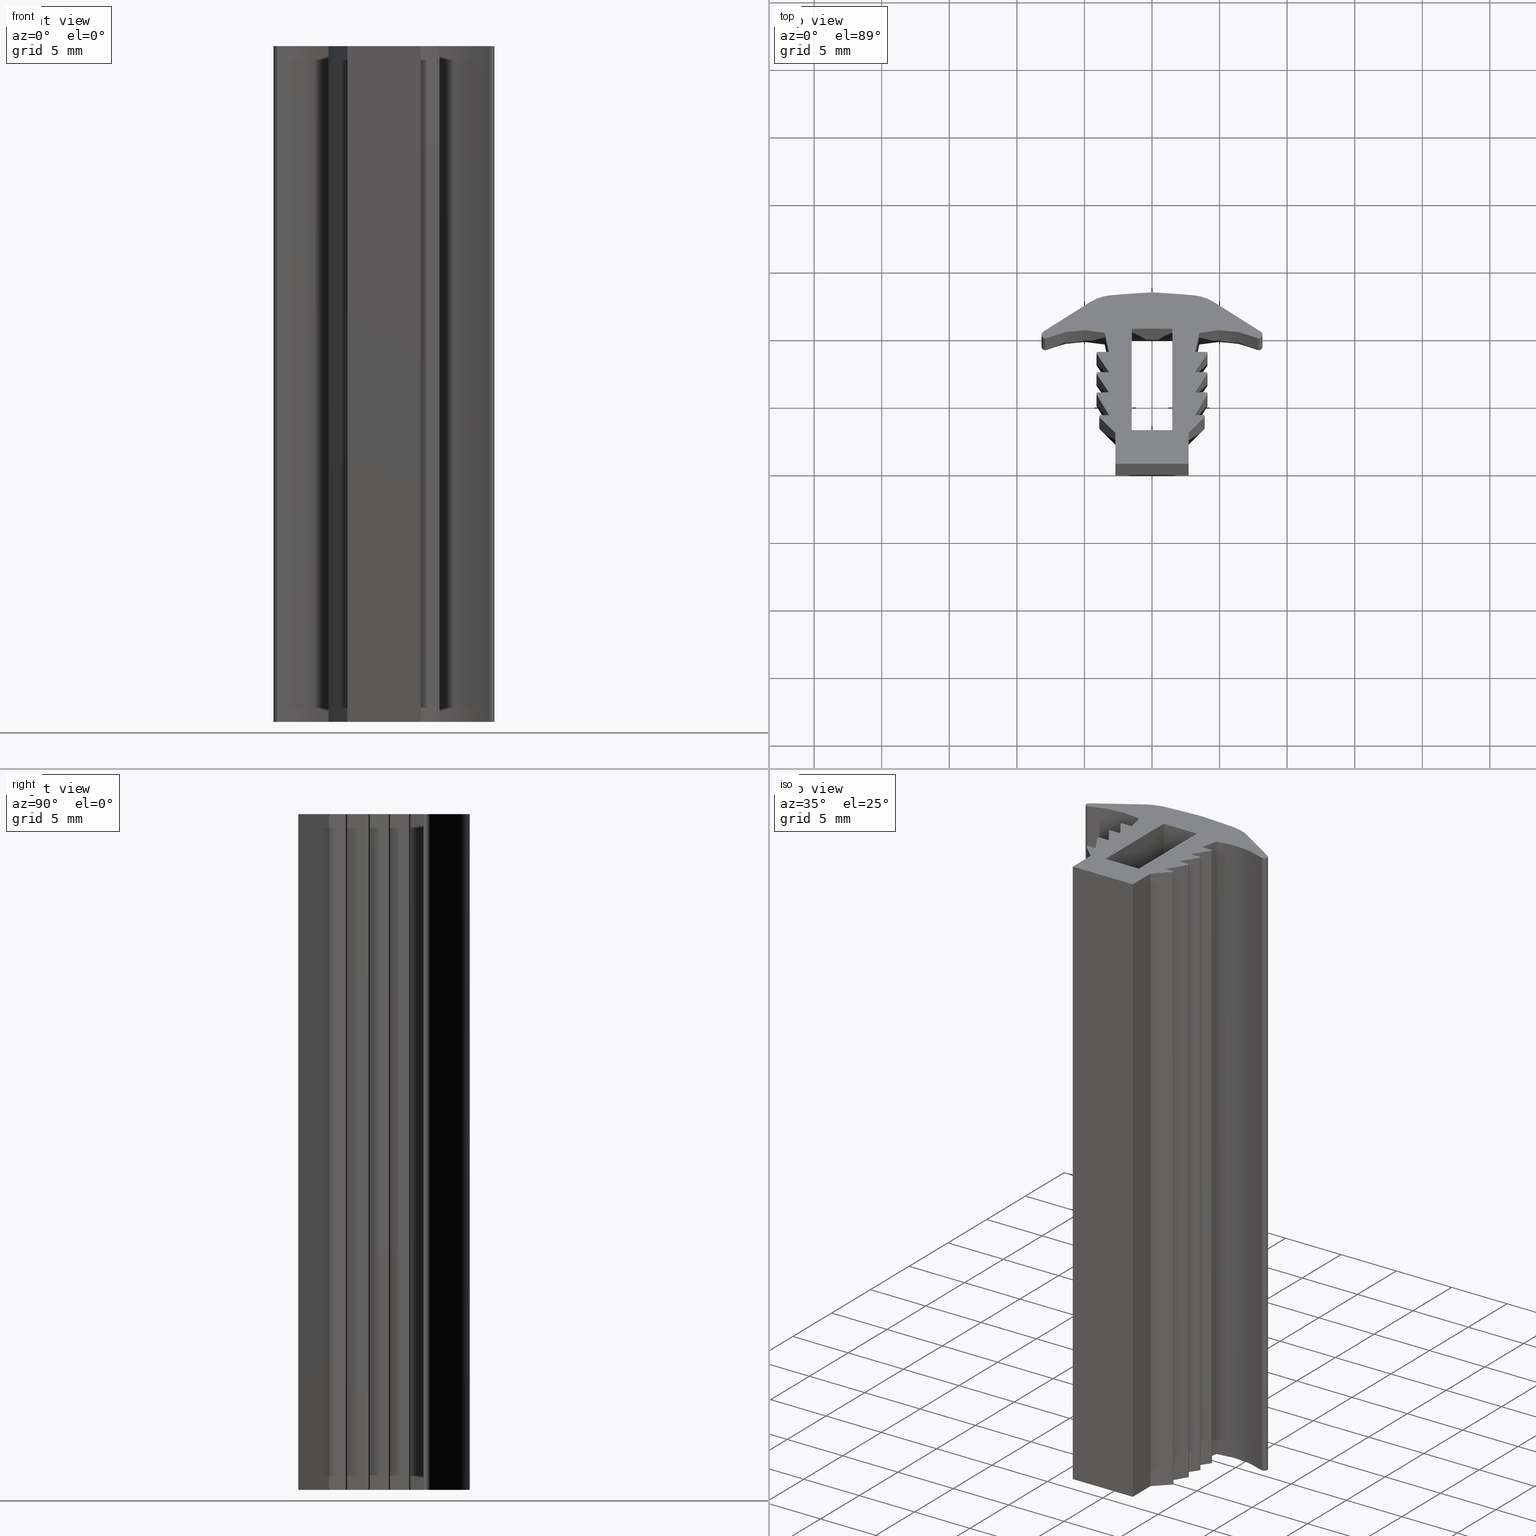
[diagram: canonical four-view strip — front | top / right | iso, engineering-drawing reading convention]
A machine part, canonical four-view strip (front | top / right | iso — engineering-drawing reading convention). The complete STEP part file that produces these views, byte-faithful:
ISO-10303-21;
HEADER;
/****************************************************************
 * Generated by software with PDE/Lib inside                    *
 * PDElib Version v4.4, created Mon 02/23/2004                  *
 * International Technegroup Inc. (www.iti-oh.com)              *
 ****************************************************************/
FILE_DESCRIPTION(('STEP AP203'),'2;1');
FILE_NAME('21.023.00N.stp','2011-03-21T16:07:05',(''),(''),'2009.3.110','THINKDESIGN','');
FILE_SCHEMA(('CONFIG_CONTROL_DESIGN'));
ENDSEC;
DATA;
#2=CARTESIAN_POINT('',(2.825158128451221,9.230648789506631,0.0));
#3=DIRECTION('',(0.0,0.0,1.0));
#4=DIRECTION('',(0.533093849256549,0.846056113910204,0.0));
#5=AXIS2_PLACEMENT_3D('',#2,#3,#4);
#6=CYLINDRICAL_SURFACE('',#5,3.254259402364415);
#7=CARTESIAN_POINT('',(4.559983799736983,11.983934853126812,0.0));
#8=VERTEX_POINT('',#7);
#9=CARTESIAN_POINT('',(3.110764471273797,12.472351008221267,0.0));
#10=VERTEX_POINT('',#9);
#11=CARTESIAN_POINT('',(2.825158128451221,9.230648789506631,0.0));
#12=DIRECTION('',(0.0,0.0,1.0));
#13=DIRECTION('',(0.533093849256549,0.846056113910204,0.0));
#14=AXIS2_PLACEMENT_3D('',#11,#12,#13);
#15=CIRCLE('',#14,3.254259402364415);
#16=EDGE_CURVE('',#8,#10,#15,.T.);
#17=ORIENTED_EDGE('',*,*,#16,.T.);
#18=CARTESIAN_POINT('',(3.110764471273797,12.472351008221267,50.0));
#19=VERTEX_POINT('',#18);
#20=CARTESIAN_POINT('',(3.110764471273797,12.472351008221267,0.0));
#21=DIRECTION('',(0.0,0.0,1.0));
#22=VECTOR('',#21,50.0);
#23=LINE('',#20,#22);
#24=EDGE_CURVE('',#10,#19,#23,.T.);
#25=ORIENTED_EDGE('',*,*,#24,.T.);
#26=CARTESIAN_POINT('',(4.559983799736983,11.983934853126812,50.0));
#27=VERTEX_POINT('',#26);
#28=CARTESIAN_POINT('',(2.825158128451221,9.230648789506631,50.0));
#29=DIRECTION('',(0.0,0.0,1.0));
#30=DIRECTION('',(0.533093849256549,0.846056113910204,0.0));
#31=AXIS2_PLACEMENT_3D('',#28,#29,#30);
#32=CIRCLE('',#31,3.254259402364415);
#33=EDGE_CURVE('',#27,#19,#32,.T.);
#34=ORIENTED_EDGE('',*,*,#33,.F.);
#35=CARTESIAN_POINT('',(4.559983799736983,11.983934853126812,0.0));
#36=DIRECTION('',(0.0,0.0,1.0));
#37=VECTOR('',#36,50.0);
#38=LINE('',#35,#37);
#39=EDGE_CURVE('',#8,#27,#38,.T.);
#40=ORIENTED_EDGE('',*,*,#39,.F.);
#41=EDGE_LOOP('',(#17,#25,#34,#40));
#42=FACE_OUTER_BOUND('',#41,.T.);
#43=ADVANCED_FACE('',(#42),#6,.T.);
#44=CARTESIAN_POINT('',(-5.124425290961426,-80.999077652820233,0.0));
#45=DIRECTION('',(0.0,0.0,1.0));
#46=DIRECTION('',(0.087763852778811,0.996141308321977,0.0));
#47=AXIS2_PLACEMENT_3D('',#44,#45,#46);
#48=CYLINDRICAL_SURFACE('',#47,93.833503219032565);
#49=CARTESIAN_POINT('',(-3.956302E-011,12.694393794201460,0.0));
#50=VERTEX_POINT('',#49);
#51=CARTESIAN_POINT('',(-5.124425290961427,-80.999077652820247,0.0));
#52=DIRECTION('',(0.0,0.0,1.0));
#53=DIRECTION('',(0.087763852778811,0.996141308321977,0.0));
#54=AXIS2_PLACEMENT_3D('',#51,#52,#53);
#55=CIRCLE('',#54,93.833503219032565);
#56=EDGE_CURVE('',#10,#50,#55,.T.);
#57=ORIENTED_EDGE('',*,*,#56,.T.);
#58=CARTESIAN_POINT('',(-3.956302E-011,12.694393794201460,50.0));
#59=VERTEX_POINT('',#58);
#60=CARTESIAN_POINT('',(-3.956302E-011,12.694393794201460,0.0));
#61=DIRECTION('',(0.0,0.0,1.0));
#62=VECTOR('',#61,50.0);
#63=LINE('',#60,#62);
#64=EDGE_CURVE('',#50,#59,#63,.T.);
#65=ORIENTED_EDGE('',*,*,#64,.T.);
#66=CARTESIAN_POINT('',(-5.124425290961427,-80.999077652820247,50.0));
#67=DIRECTION('',(0.0,0.0,1.0));
#68=DIRECTION('',(0.087763852778811,0.996141308321977,0.0));
#69=AXIS2_PLACEMENT_3D('',#66,#67,#68);
#70=CIRCLE('',#69,93.833503219032565);
#71=EDGE_CURVE('',#19,#59,#70,.T.);
#72=ORIENTED_EDGE('',*,*,#71,.F.);
#73=ORIENTED_EDGE('',*,*,#24,.F.);
#74=EDGE_LOOP('',(#57,#65,#72,#73));
#75=FACE_OUTER_BOUND('',#74,.T.);
#76=ADVANCED_FACE('',(#75),#48,.T.);
#77=CARTESIAN_POINT('',(5.124425290880481,-80.999077652821143,0.0));
#78=DIRECTION('',(0.0,0.0,1.0));
#79=DIRECTION('',(1.0,0.0,0.0));
#80=AXIS2_PLACEMENT_3D('',#77,#78,#79);
#81=CYLINDRICAL_SURFACE('',#80,93.833503219032465);
#82=CARTESIAN_POINT('',(-3.110764471353377,12.472351008219448,0.0));
#83=VERTEX_POINT('',#82);
#84=CARTESIAN_POINT('',(5.124425290880481,-80.999077652821143,0.0));
#85=DIRECTION('',(0.0,0.0,1.0));
#86=DIRECTION('',(1.0,0.0,0.0));
#87=AXIS2_PLACEMENT_3D('',#84,#85,#86);
#88=CIRCLE('',#87,93.833503219032465);
#89=EDGE_CURVE('',#50,#83,#88,.T.);
#90=ORIENTED_EDGE('',*,*,#89,.T.);
#91=CARTESIAN_POINT('',(-3.110764471353377,12.472351008219448,50.0));
#92=VERTEX_POINT('',#91);
#93=CARTESIAN_POINT('',(-3.110764471353377,12.472351008219448,0.0));
#94=DIRECTION('',(0.0,0.0,1.0));
#95=VECTOR('',#94,50.0);
#96=LINE('',#93,#95);
#97=EDGE_CURVE('',#83,#92,#96,.T.);
#98=ORIENTED_EDGE('',*,*,#97,.T.);
#99=CARTESIAN_POINT('',(5.124425290880481,-80.999077652821143,50.0));
#100=DIRECTION('',(0.0,0.0,1.0));
#101=DIRECTION('',(1.0,0.0,0.0));
#102=AXIS2_PLACEMENT_3D('',#99,#100,#101);
#103=CIRCLE('',#102,93.833503219032465);
#104=EDGE_CURVE('',#59,#92,#103,.T.);
#105=ORIENTED_EDGE('',*,*,#104,.F.);
#106=ORIENTED_EDGE('',*,*,#64,.F.);
#107=EDGE_LOOP('',(#90,#98,#105,#106));
#108=FACE_OUTER_BOUND('',#107,.T.);
#109=ADVANCED_FACE('',(#108),#81,.T.);
#110=CARTESIAN_POINT('',(-2.825158128530802,9.230648789504812,0.0));
#111=DIRECTION('',(0.0,0.0,1.0));
#112=DIRECTION('',(1.0,0.0,0.0));
#113=AXIS2_PLACEMENT_3D('',#110,#111,#112);
#114=CYLINDRICAL_SURFACE('',#113,3.254259402364996);
#115=CARTESIAN_POINT('',(-4.559983799817928,11.983934853125902,0.0));
#116=VERTEX_POINT('',#115);
#117=CARTESIAN_POINT('',(-2.825158128530802,9.230648789504812,0.0));
#118=DIRECTION('',(0.0,0.0,1.0));
#119=DIRECTION('',(1.0,0.0,0.0));
#120=AXIS2_PLACEMENT_3D('',#117,#118,#119);
#121=CIRCLE('',#120,3.254259402364996);
#122=EDGE_CURVE('',#83,#116,#121,.T.);
#123=ORIENTED_EDGE('',*,*,#122,.T.);
#124=CARTESIAN_POINT('',(-4.559983799817928,11.983934853125902,50.0));
#125=VERTEX_POINT('',#124);
#126=CARTESIAN_POINT('',(-4.559983799817928,11.983934853125902,0.0));
#127=DIRECTION('',(0.0,0.0,1.0));
#128=VECTOR('',#127,50.0);
#129=LINE('',#126,#128);
#130=EDGE_CURVE('',#116,#125,#129,.T.);
#131=ORIENTED_EDGE('',*,*,#130,.T.);
#132=CARTESIAN_POINT('',(-2.825158128530802,9.230648789504812,50.0));
#133=DIRECTION('',(0.0,0.0,1.0));
#134=DIRECTION('',(1.0,0.0,0.0));
#135=AXIS2_PLACEMENT_3D('',#132,#133,#134);
#136=CIRCLE('',#135,3.254259402364996);
#137=EDGE_CURVE('',#92,#125,#136,.T.);
#138=ORIENTED_EDGE('',*,*,#137,.F.);
#139=ORIENTED_EDGE('',*,*,#97,.F.);
#140=EDGE_LOOP('',(#123,#131,#138,#139));
#141=FACE_OUTER_BOUND('',#140,.T.);
#142=ADVANCED_FACE('',(#141),#114,.T.);
#143=CARTESIAN_POINT('',(-4.559983799817928,11.983934853125902,0.0));
#144=DIRECTION('',(-0.533093847766185,0.846056114849272,0.0));
#145=DIRECTION('',(-0.846056114849272,-0.533093847766185,0.0));
#146=AXIS2_PLACEMENT_3D('',#143,#144,#145);
#147=PLANE('',#146);
#148=CARTESIAN_POINT('',(-8.048360099163801,9.785934139891651,0.0));
#149=VERTEX_POINT('',#148);
#150=CARTESIAN_POINT('',(-4.559983799817928,11.983934853125902,0.0));
#151=DIRECTION('',(-0.846056114849325,-0.533093847766101,0.0));
#152=VECTOR('',#151,4.123102756567948);
#153=LINE('',#150,#152);
#154=EDGE_CURVE('',#116,#149,#153,.T.);
#155=ORIENTED_EDGE('',*,*,#154,.T.);
#156=CARTESIAN_POINT('',(-8.048360099163801,9.785934139891651,50.0));
#157=VERTEX_POINT('',#156);
#158=CARTESIAN_POINT('',(-8.048360099163801,9.785934139891651,0.0));
#159=DIRECTION('',(0.0,0.0,1.0));
#160=VECTOR('',#159,50.0);
#161=LINE('',#158,#160);
#162=EDGE_CURVE('',#149,#157,#161,.T.);
#163=ORIENTED_EDGE('',*,*,#162,.T.);
#164=CARTESIAN_POINT('',(-4.559983799817928,11.983934853125902,50.0));
#165=DIRECTION('',(-0.846056114849325,-0.533093847766101,0.0));
#166=VECTOR('',#165,4.123102756567948);
#167=LINE('',#164,#166);
#168=EDGE_CURVE('',#125,#157,#167,.T.);
#169=ORIENTED_EDGE('',*,*,#168,.F.);
#170=ORIENTED_EDGE('',*,*,#130,.F.);
#171=EDGE_LOOP('',(#155,#163,#169,#170));
#172=FACE_OUTER_BOUND('',#171,.T.);
#173=ADVANCED_FACE('',(#172),#147,.T.);
#174=CARTESIAN_POINT('',(-7.902250921402356,9.554048893439358,0.0));
#175=DIRECTION('',(0.0,0.0,1.0));
#176=DIRECTION('',(1.0,0.0,0.0));
#177=AXIS2_PLACEMENT_3D('',#174,#175,#176);
#178=CYLINDRICAL_SURFACE('',#177,0.274077834471037);
#179=CARTESIAN_POINT('',(-7.789874920917100,9.304068306467343,0.0));
#180=VERTEX_POINT('',#179);
#181=CARTESIAN_POINT('',(-7.902250921402356,9.554048893439358,0.0));
#182=DIRECTION('',(0.0,0.0,1.0));
#183=DIRECTION('',(1.0,0.0,0.0));
#184=AXIS2_PLACEMENT_3D('',#181,#182,#183);
#185=CIRCLE('',#184,0.274077834471037);
#186=EDGE_CURVE('',#149,#180,#185,.T.);
#187=ORIENTED_EDGE('',*,*,#186,.T.);
#188=CARTESIAN_POINT('',(-7.789874920917100,9.304068306467343,50.0));
#189=VERTEX_POINT('',#188);
#190=CARTESIAN_POINT('',(-7.789874920917100,9.304068306467343,0.0));
#191=DIRECTION('',(0.0,0.0,1.0));
#192=VECTOR('',#191,50.0);
#193=LINE('',#190,#192);
#194=EDGE_CURVE('',#180,#189,#193,.T.);
#195=ORIENTED_EDGE('',*,*,#194,.T.);
#196=CARTESIAN_POINT('',(-7.902250921402356,9.554048893439358,50.0));
#197=DIRECTION('',(0.0,0.0,1.0));
#198=DIRECTION('',(1.0,0.0,0.0));
#199=AXIS2_PLACEMENT_3D('',#196,#197,#198);
#200=CIRCLE('',#199,0.274077834471037);
#201=EDGE_CURVE('',#157,#189,#200,.T.);
#202=ORIENTED_EDGE('',*,*,#201,.F.);
#203=ORIENTED_EDGE('',*,*,#162,.F.);
#204=EDGE_LOOP('',(#187,#195,#202,#203));
#205=FACE_OUTER_BOUND('',#204,.T.);
#206=ADVANCED_FACE('',(#205),#178,.T.);
#207=CARTESIAN_POINT('',(-5.064586375299768,3.241657303579814,0.0));
#208=DIRECTION('',(0.0,0.0,-1.0));
#209=DIRECTION('',(-0.410014780826523,0.912078877895864,0.0));
#210=AXIS2_PLACEMENT_3D('',#207,#208,#209);
#211=CYLINDRICAL_SURFACE('',#210,6.646805610577232);
#212=CARTESIAN_POINT('',(-3.499992999986716,9.701693866534697,0.0));
#213=VERTEX_POINT('',#212);
#214=CARTESIAN_POINT('',(-5.064586375299768,3.241657303579814,0.0));
#215=DIRECTION('',(0.0,0.0,-1.0));
#216=DIRECTION('',(1.0,0.0,0.0));
#217=AXIS2_PLACEMENT_3D('',#214,#215,#216);
#218=CIRCLE('',#217,6.646805610577232);
#219=EDGE_CURVE('',#180,#213,#218,.T.);
#220=ORIENTED_EDGE('',*,*,#219,.T.);
#221=CARTESIAN_POINT('',(-3.499992999986716,9.701693866534697,50.0));
#222=VERTEX_POINT('',#221);
#223=CARTESIAN_POINT('',(-3.499992999986716,9.701693866534697,0.0));
#224=DIRECTION('',(0.0,0.0,1.0));
#225=VECTOR('',#224,50.0);
#226=LINE('',#223,#225);
#227=EDGE_CURVE('',#213,#222,#226,.T.);
#228=ORIENTED_EDGE('',*,*,#227,.T.);
#229=CARTESIAN_POINT('',(-5.064586375299768,3.241657303579814,50.0));
#230=DIRECTION('',(0.0,0.0,-1.0));
#231=DIRECTION('',(1.0,0.0,0.0));
#232=AXIS2_PLACEMENT_3D('',#229,#230,#231);
#233=CIRCLE('',#232,6.646805610577232);
#234=EDGE_CURVE('',#189,#222,#233,.T.);
#235=ORIENTED_EDGE('',*,*,#234,.F.);
#236=ORIENTED_EDGE('',*,*,#194,.F.);
#237=EDGE_LOOP('',(#220,#228,#235,#236));
#238=FACE_OUTER_BOUND('',#237,.T.);
#239=ADVANCED_FACE('',(#238),#211,.F.);
#240=CARTESIAN_POINT('',(-3.499992999986716,9.701693866534697,0.0));
#241=DIRECTION('',(-0.976617844775612,-0.214982755740638,0.0));
#242=DIRECTION('',(0.214982755740638,-0.976617844775612,0.0));
#243=AXIS2_PLACEMENT_3D('',#240,#241,#242);
#244=PLANE('',#243);
#245=CARTESIAN_POINT('',(-3.189815244682450,8.292626753973309,0.0));
#246=VERTEX_POINT('',#245);
#247=CARTESIAN_POINT('',(-3.499992999986716,9.701693866534697,0.0));
#248=DIRECTION('',(0.214982755740563,-0.976617844775628,0.0));
#249=VECTOR('',#248,1.442802955219237);
#250=LINE('',#247,#249);
#251=EDGE_CURVE('',#213,#246,#250,.T.);
#252=ORIENTED_EDGE('',*,*,#251,.T.);
#253=CARTESIAN_POINT('',(-3.189815244682450,8.292626753973309,50.0));
#254=VERTEX_POINT('',#253);
#255=CARTESIAN_POINT('',(-3.189815244682450,8.292626753973309,0.0));
#256=DIRECTION('',(0.0,0.0,1.0));
#257=VECTOR('',#256,50.0);
#258=LINE('',#255,#257);
#259=EDGE_CURVE('',#246,#254,#258,.T.);
#260=ORIENTED_EDGE('',*,*,#259,.T.);
#261=CARTESIAN_POINT('',(-3.499992999986716,9.701693866534697,50.0));
#262=DIRECTION('',(0.214982755740563,-0.976617844775628,0.0));
#263=VECTOR('',#262,1.442802955219237);
#264=LINE('',#261,#263);
#265=EDGE_CURVE('',#222,#254,#264,.T.);
#266=ORIENTED_EDGE('',*,*,#265,.F.);
#267=ORIENTED_EDGE('',*,*,#227,.F.);
#268=EDGE_LOOP('',(#252,#260,#266,#267));
#269=FACE_OUTER_BOUND('',#268,.T.);
#270=ADVANCED_FACE('',(#269),#244,.T.);
#271=CARTESIAN_POINT('',(-3.189815244682450,8.292626753973309,0.0));
#272=DIRECTION('',(0.0,1.0,0.0));
#273=DIRECTION('',(-1.0,0.0,0.0));
#274=AXIS2_PLACEMENT_3D('',#271,#272,#273);
#275=PLANE('',#274);
#276=CARTESIAN_POINT('',(-4.007832173567749,8.292626753972400,0.0));
#277=VERTEX_POINT('',#276);
#278=CARTESIAN_POINT('',(-3.189815244682450,8.292626753973309,0.0));
#279=DIRECTION('',(-1.0,0.0,0.0));
#280=VECTOR('',#279,0.818016928885831);
#281=LINE('',#278,#280);
#282=EDGE_CURVE('',#246,#277,#281,.T.);
#283=ORIENTED_EDGE('',*,*,#282,.T.);
#284=CARTESIAN_POINT('',(-4.007832173567749,8.292626753972400,50.0));
#285=VERTEX_POINT('',#284);
#286=CARTESIAN_POINT('',(-4.007832173567749,8.292626753972400,0.0));
#287=DIRECTION('',(0.0,0.0,1.0));
#288=VECTOR('',#287,50.0);
#289=LINE('',#286,#288);
#290=EDGE_CURVE('',#277,#285,#289,.T.);
#291=ORIENTED_EDGE('',*,*,#290,.T.);
#292=CARTESIAN_POINT('',(-3.189815244682450,8.292626753973309,50.0));
#293=DIRECTION('',(-1.0,0.0,0.0));
#294=VECTOR('',#293,0.818016928885831);
#295=LINE('',#292,#294);
#296=EDGE_CURVE('',#254,#285,#295,.T.);
#297=ORIENTED_EDGE('',*,*,#296,.F.);
#298=ORIENTED_EDGE('',*,*,#259,.F.);
#299=EDGE_LOOP('',(#283,#291,#297,#298));
#300=FACE_OUTER_BOUND('',#299,.T.);
#301=ADVANCED_FACE('',(#300),#275,.T.);
#302=CARTESIAN_POINT('',(-4.007832173675070,8.192626954795742,0.0));
#303=DIRECTION('',(0.0,0.0,1.0));
#304=DIRECTION('',(1.0,0.0,0.0));
#305=AXIS2_PLACEMENT_3D('',#302,#303,#304);
#306=CYLINDRICAL_SURFACE('',#305,0.099999799176873);
#307=CARTESIAN_POINT('',(-4.093784821662212,8.141518226190783,0.0));
#308=VERTEX_POINT('',#307);
#309=CARTESIAN_POINT('',(-4.007832173675070,8.192626954795742,0.0));
#310=DIRECTION('',(0.0,0.0,1.0));
#311=DIRECTION('',(1.0,0.0,0.0));
#312=AXIS2_PLACEMENT_3D('',#309,#310,#311);
#313=CIRCLE('',#312,0.099999799176873);
#314=EDGE_CURVE('',#277,#308,#313,.T.);
#315=ORIENTED_EDGE('',*,*,#314,.T.);
#316=CARTESIAN_POINT('',(-4.093784821662212,8.141518226190783,50.0));
#317=VERTEX_POINT('',#316);
#318=CARTESIAN_POINT('',(-4.093784821662212,8.141518226190783,0.0));
#319=DIRECTION('',(0.0,0.0,1.0));
#320=VECTOR('',#319,50.0);
#321=LINE('',#318,#320);
#322=EDGE_CURVE('',#308,#317,#321,.T.);
#323=ORIENTED_EDGE('',*,*,#322,.T.);
#324=CARTESIAN_POINT('',(-4.007832173675070,8.192626954795742,50.0));
#325=DIRECTION('',(0.0,0.0,1.0));
#326=DIRECTION('',(1.0,0.0,0.0));
#327=AXIS2_PLACEMENT_3D('',#324,#325,#326);
#328=CIRCLE('',#327,0.099999799176873);
#329=EDGE_CURVE('',#285,#317,#328,.T.);
#330=ORIENTED_EDGE('',*,*,#329,.F.);
#331=ORIENTED_EDGE('',*,*,#290,.F.);
#332=EDGE_LOOP('',(#315,#323,#330,#331));
#333=FACE_OUTER_BOUND('',#332,.T.);
#334=ADVANCED_FACE('',(#333),#306,.T.);
#335=CARTESIAN_POINT('',(-4.093784821662212,8.141518226190783,0.0));
#336=DIRECTION('',(-0.830708944488759,-0.556706969191488,0.0));
#337=DIRECTION('',(0.556706969191488,-0.830708944488759,0.0));
#338=AXIS2_PLACEMENT_3D('',#335,#336,#337);
#339=PLANE('',#338);
#340=CARTESIAN_POINT('',(-3.189815244682450,6.792629753978872,0.0));
#341=VERTEX_POINT('',#340);
#342=CARTESIAN_POINT('',(-4.093784821662212,8.141518226190783,0.0));
#343=DIRECTION('',(0.556706969191389,-0.830708944488825,0.0));
#344=VECTOR('',#343,1.623779882425944);
#345=LINE('',#342,#344);
#346=EDGE_CURVE('',#308,#341,#345,.T.);
#347=ORIENTED_EDGE('',*,*,#346,.T.);
#348=CARTESIAN_POINT('',(-3.189815244682450,6.792629753978872,50.0));
#349=VERTEX_POINT('',#348);
#350=CARTESIAN_POINT('',(-3.189815244682450,6.792629753978872,0.0));
#351=DIRECTION('',(0.0,0.0,1.0));
#352=VECTOR('',#351,50.0);
#353=LINE('',#350,#352);
#354=EDGE_CURVE('',#341,#349,#353,.T.);
#355=ORIENTED_EDGE('',*,*,#354,.T.);
#356=CARTESIAN_POINT('',(-4.093784821662212,8.141518226190783,50.0));
#357=DIRECTION('',(0.556706969191389,-0.830708944488825,0.0));
#358=VECTOR('',#357,1.623779882425944);
#359=LINE('',#356,#358);
#360=EDGE_CURVE('',#317,#349,#359,.T.);
#361=ORIENTED_EDGE('',*,*,#360,.F.);
#362=ORIENTED_EDGE('',*,*,#322,.F.);
#363=EDGE_LOOP('',(#347,#355,#361,#362));
#364=FACE_OUTER_BOUND('',#363,.T.);
#365=ADVANCED_FACE('',(#364),#339,.T.);
#366=CARTESIAN_POINT('',(-3.189815244682450,6.792629753978872,0.0));
#367=DIRECTION('',(0.0,1.0,0.0));
#368=DIRECTION('',(-1.0,0.0,0.0));
#369=AXIS2_PLACEMENT_3D('',#366,#367,#368);
#370=PLANE('',#369);
#371=CARTESIAN_POINT('',(-4.007832173568659,6.792629753977963,0.0));
#372=VERTEX_POINT('',#371);
#373=CARTESIAN_POINT('',(-3.189815244682450,6.792629753978872,0.0));
#374=DIRECTION('',(-1.0,0.0,0.0));
#375=VECTOR('',#374,0.818016928885831);
#376=LINE('',#373,#375);
#377=EDGE_CURVE('',#341,#372,#376,.T.);
#378=ORIENTED_EDGE('',*,*,#377,.T.);
#379=CARTESIAN_POINT('',(-4.007832173568659,6.792629753977963,50.0));
#380=VERTEX_POINT('',#379);
#381=CARTESIAN_POINT('',(-4.007832173568659,6.792629753977963,0.0));
#382=DIRECTION('',(0.0,0.0,1.0));
#383=VECTOR('',#382,50.0);
#384=LINE('',#381,#383);
#385=EDGE_CURVE('',#372,#380,#384,.T.);
#386=ORIENTED_EDGE('',*,*,#385,.T.);
#387=CARTESIAN_POINT('',(-3.189815244682450,6.792629753978872,50.0));
#388=DIRECTION('',(-1.0,0.0,0.0));
#389=VECTOR('',#388,0.818016928885831);
#390=LINE('',#387,#389);
#391=EDGE_CURVE('',#349,#380,#390,.T.);
#392=ORIENTED_EDGE('',*,*,#391,.F.);
#393=ORIENTED_EDGE('',*,*,#354,.F.);
#394=EDGE_LOOP('',(#378,#386,#392,#393));
#395=FACE_OUTER_BOUND('',#394,.T.);
#396=ADVANCED_FACE('',(#395),#370,.T.);
#397=CARTESIAN_POINT('',(-4.007832175170734,6.692629955651682,0.0));
#398=DIRECTION('',(0.0,0.0,1.0));
#399=DIRECTION('',(1.0,0.0,0.0));
#400=AXIS2_PLACEMENT_3D('',#397,#398,#399);
#401=CYLINDRICAL_SURFACE('',#400,0.099999798326497);
#402=CARTESIAN_POINT('',(-4.093784821662212,6.641521226197256,0.0));
#403=VERTEX_POINT('',#402);
#404=CARTESIAN_POINT('',(-4.007832175170734,6.692629955651682,0.0));
#405=DIRECTION('',(0.0,0.0,1.0));
#406=DIRECTION('',(1.0,0.0,0.0));
#407=AXIS2_PLACEMENT_3D('',#404,#405,#406);
#408=CIRCLE('',#407,0.099999798326497);
#409=EDGE_CURVE('',#372,#403,#408,.T.);
#410=ORIENTED_EDGE('',*,*,#409,.T.);
#411=CARTESIAN_POINT('',(-4.093784821662212,6.641521226197256,50.0));
#412=VERTEX_POINT('',#411);
#413=CARTESIAN_POINT('',(-4.093784821662212,6.641521226197256,0.0));
#414=DIRECTION('',(0.0,0.0,1.0));
#415=VECTOR('',#414,50.0);
#416=LINE('',#413,#415);
#417=EDGE_CURVE('',#403,#412,#416,.T.);
#418=ORIENTED_EDGE('',*,*,#417,.T.);
#419=CARTESIAN_POINT('',(-4.007832175170734,6.692629955651682,50.0));
#420=DIRECTION('',(0.0,0.0,1.0));
#421=DIRECTION('',(1.0,0.0,0.0));
#422=AXIS2_PLACEMENT_3D('',#419,#420,#421);
#423=CIRCLE('',#422,0.099999798326497);
#424=EDGE_CURVE('',#380,#412,#423,.T.);
#425=ORIENTED_EDGE('',*,*,#424,.F.);
#426=ORIENTED_EDGE('',*,*,#385,.F.);
#427=EDGE_LOOP('',(#410,#418,#425,#426));
#428=FACE_OUTER_BOUND('',#427,.T.);
#429=ADVANCED_FACE('',(#428),#401,.T.);
#430=CARTESIAN_POINT('',(-4.093784821662212,6.641521226197256,0.0));
#431=DIRECTION('',(-0.830708944488759,-0.556706969191488,0.0));
#432=DIRECTION('',(0.556706969191488,-0.830708944488759,0.0));
#433=AXIS2_PLACEMENT_3D('',#430,#431,#432);
#434=PLANE('',#433);
#435=CARTESIAN_POINT('',(-3.189815244682450,5.292632753984435,0.0));
#436=VERTEX_POINT('',#435);
#437=CARTESIAN_POINT('',(-4.093784821662212,6.641521226197256,0.0));
#438=DIRECTION('',(0.556706969191389,-0.830708944488825,0.0));
#439=VECTOR('',#438,1.623779882425944);
#440=LINE('',#437,#439);
#441=EDGE_CURVE('',#403,#436,#440,.T.);
#442=ORIENTED_EDGE('',*,*,#441,.T.);
#443=CARTESIAN_POINT('',(-3.189815244682450,5.292632753984435,50.0));
#444=VERTEX_POINT('',#443);
#445=CARTESIAN_POINT('',(-3.189815244682450,5.292632753984435,0.0));
#446=DIRECTION('',(0.0,0.0,1.0));
#447=VECTOR('',#446,50.0);
#448=LINE('',#445,#447);
#449=EDGE_CURVE('',#436,#444,#448,.T.);
#450=ORIENTED_EDGE('',*,*,#449,.T.);
#451=CARTESIAN_POINT('',(-4.093784821662212,6.641521226197256,50.0));
#452=DIRECTION('',(0.556706969191389,-0.830708944488825,0.0));
#453=VECTOR('',#452,1.623779882425944);
#454=LINE('',#451,#453);
#455=EDGE_CURVE('',#412,#444,#454,.T.);
#456=ORIENTED_EDGE('',*,*,#455,.F.);
#457=ORIENTED_EDGE('',*,*,#417,.F.);
#458=EDGE_LOOP('',(#442,#450,#456,#457));
#459=FACE_OUTER_BOUND('',#458,.T.);
#460=ADVANCED_FACE('',(#459),#434,.T.);
#461=CARTESIAN_POINT('',(-3.189815244682450,5.292632753984435,0.0));
#462=DIRECTION('',(0.0,1.0,0.0));
#463=DIRECTION('',(-1.0,0.0,0.0));
#464=AXIS2_PLACEMENT_3D('',#461,#462,#463);
#465=PLANE('',#464);
#466=CARTESIAN_POINT('',(-4.007832173567294,5.292632753984435,0.0));
#467=VERTEX_POINT('',#466);
#468=CARTESIAN_POINT('',(-3.189815244682450,5.292632753984435,0.0));
#469=DIRECTION('',(-1.0,0.0,0.0));
#470=VECTOR('',#469,0.818016928885831);
#471=LINE('',#468,#470);
#472=EDGE_CURVE('',#436,#467,#471,.T.);
#473=ORIENTED_EDGE('',*,*,#472,.T.);
#474=CARTESIAN_POINT('',(-4.007832173567294,5.292632753984435,50.0));
#475=VERTEX_POINT('',#474);
#476=CARTESIAN_POINT('',(-4.007832173567294,5.292632753984435,0.0));
#477=DIRECTION('',(0.0,0.0,1.0));
#478=VECTOR('',#477,50.0);
#479=LINE('',#476,#478);
#480=EDGE_CURVE('',#467,#475,#479,.T.);
#481=ORIENTED_EDGE('',*,*,#480,.T.);
#482=CARTESIAN_POINT('',(-3.189815244682450,5.292632753984435,50.0));
#483=DIRECTION('',(-1.0,0.0,0.0));
#484=VECTOR('',#483,0.818016928885831);
#485=LINE('',#482,#484);
#486=EDGE_CURVE('',#444,#475,#485,.T.);
#487=ORIENTED_EDGE('',*,*,#486,.F.);
#488=ORIENTED_EDGE('',*,*,#449,.F.);
#489=EDGE_LOOP('',(#473,#481,#487,#488));
#490=FACE_OUTER_BOUND('',#489,.T.);
#491=ADVANCED_FACE('',(#490),#465,.T.);
#492=CARTESIAN_POINT('',(-4.007832172325834,5.192632950657753,0.0));
#493=DIRECTION('',(0.0,0.0,1.0));
#494=DIRECTION('',(1.0,0.0,0.0));
#495=AXIS2_PLACEMENT_3D('',#492,#493,#494);
#496=CYLINDRICAL_SURFACE('',#495,0.099999803326889);
#497=CARTESIAN_POINT('',(-4.093784821662212,5.141524216202924,0.0));
#498=VERTEX_POINT('',#497);
#499=CARTESIAN_POINT('',(-4.007832172325834,5.192632950657753,0.0));
#500=DIRECTION('',(0.0,0.0,1.0));
#501=DIRECTION('',(1.0,0.0,0.0));
#502=AXIS2_PLACEMENT_3D('',#499,#500,#501);
#503=CIRCLE('',#502,0.099999803326889);
#504=EDGE_CURVE('',#467,#498,#503,.T.);
#505=ORIENTED_EDGE('',*,*,#504,.T.);
#506=CARTESIAN_POINT('',(-4.093784821662212,5.141524216202924,50.0));
#507=VERTEX_POINT('',#506);
#508=CARTESIAN_POINT('',(-4.093784821662212,5.141524216202924,0.0));
#509=DIRECTION('',(0.0,0.0,1.0));
#510=VECTOR('',#509,50.0);
#511=LINE('',#508,#510);
#512=EDGE_CURVE('',#498,#507,#511,.T.);
#513=ORIENTED_EDGE('',*,*,#512,.T.);
#514=CARTESIAN_POINT('',(-4.007832172325834,5.192632950657753,50.0));
#515=DIRECTION('',(0.0,0.0,1.0));
#516=DIRECTION('',(1.0,0.0,0.0));
#517=AXIS2_PLACEMENT_3D('',#514,#515,#516);
#518=CIRCLE('',#517,0.099999803326889);
#519=EDGE_CURVE('',#475,#507,#518,.T.);
#520=ORIENTED_EDGE('',*,*,#519,.F.);
#521=ORIENTED_EDGE('',*,*,#480,.F.);
#522=EDGE_LOOP('',(#505,#513,#520,#521));
#523=FACE_OUTER_BOUND('',#522,.T.);
#524=ADVANCED_FACE('',(#523),#496,.T.);
#525=CARTESIAN_POINT('',(-4.093784821662212,5.141524216202924,0.0));
#526=DIRECTION('',(-0.861491170842370,-0.507772550026725,0.0));
#527=DIRECTION('',(0.507772550026725,-0.861491170842370,0.0));
#528=AXIS2_PLACEMENT_3D('',#525,#526,#527);
#529=PLANE('',#528);
#530=CARTESIAN_POINT('',(-3.189815244682450,3.607841843579990,0.0));
#531=VERTEX_POINT('',#530);
#532=CARTESIAN_POINT('',(-4.093784821662212,5.141524216202924,0.0));
#533=DIRECTION('',(0.507772550026667,-0.861491170842404,0.0));
#534=VECTOR('',#533,1.780264760140780);
#535=LINE('',#532,#534);
#536=EDGE_CURVE('',#498,#531,#535,.T.);
#537=ORIENTED_EDGE('',*,*,#536,.T.);
#538=CARTESIAN_POINT('',(-3.189815244682450,3.607841843579990,50.0));
#539=VERTEX_POINT('',#538);
#540=CARTESIAN_POINT('',(-3.189815244682450,3.607841843579990,0.0));
#541=DIRECTION('',(0.0,0.0,1.0));
#542=VECTOR('',#541,50.0);
#543=LINE('',#540,#542);
#544=EDGE_CURVE('',#531,#539,#543,.T.);
#545=ORIENTED_EDGE('',*,*,#544,.T.);
#546=CARTESIAN_POINT('',(-4.093784821662212,5.141524216202924,50.0));
#547=DIRECTION('',(0.507772550026667,-0.861491170842404,0.0));
#548=VECTOR('',#547,1.780264760140780);
#549=LINE('',#546,#548);
#550=EDGE_CURVE('',#507,#539,#549,.T.);
#551=ORIENTED_EDGE('',*,*,#550,.F.);
#552=ORIENTED_EDGE('',*,*,#512,.F.);
#553=EDGE_LOOP('',(#537,#545,#551,#552));
#554=FACE_OUTER_BOUND('',#553,.T.);
#555=ADVANCED_FACE('',(#554),#529,.T.);
#556=CARTESIAN_POINT('',(-3.189815244682450,3.607841843579990,0.0));
#557=DIRECTION('',(0.0,1.0,0.0));
#558=DIRECTION('',(-1.0,0.0,0.0));
#559=AXIS2_PLACEMENT_3D('',#556,#557,#558);
#560=PLANE('',#559);
#561=CARTESIAN_POINT('',(-3.806669745893942,3.607841843579990,0.0));
#562=VERTEX_POINT('',#561);
#563=CARTESIAN_POINT('',(-3.189815244682450,3.607841843579990,0.0));
#564=DIRECTION('',(-1.0,0.0,0.0));
#565=VECTOR('',#564,0.616854501210629);
#566=LINE('',#563,#565);
#567=EDGE_CURVE('',#531,#562,#566,.T.);
#568=ORIENTED_EDGE('',*,*,#567,.T.);
#569=CARTESIAN_POINT('',(-3.806669745893942,3.607841843579990,50.0));
#570=VERTEX_POINT('',#569);
#571=CARTESIAN_POINT('',(-3.806669745893942,3.607841843579990,0.0));
#572=DIRECTION('',(0.0,0.0,1.0));
#573=VECTOR('',#572,50.0);
#574=LINE('',#571,#573);
#575=EDGE_CURVE('',#562,#570,#574,.T.);
#576=ORIENTED_EDGE('',*,*,#575,.T.);
#577=CARTESIAN_POINT('',(-3.189815244682450,3.607841843579990,50.0));
#578=DIRECTION('',(-1.0,0.0,0.0));
#579=VECTOR('',#578,0.616854501210629);
#580=LINE('',#577,#579);
#581=EDGE_CURVE('',#539,#570,#580,.T.);
#582=ORIENTED_EDGE('',*,*,#581,.F.);
#583=ORIENTED_EDGE('',*,*,#544,.F.);
#584=EDGE_LOOP('',(#568,#576,#582,#583));
#585=FACE_OUTER_BOUND('',#584,.T.);
#586=ADVANCED_FACE('',(#585),#560,.T.);
#587=CARTESIAN_POINT('',(-3.806669744843021,3.507842040917240,0.0));
#588=DIRECTION('',(0.0,0.0,1.0));
#589=DIRECTION('',(1.0,0.0,0.0));
#590=AXIS2_PLACEMENT_3D('',#587,#588,#589);
#591=CYLINDRICAL_SURFACE('',#590,0.099999802662959);
#592=CARTESIAN_POINT('',(-3.886577546078115,3.447719633825727,0.0));
#593=VERTEX_POINT('',#592);
#594=CARTESIAN_POINT('',(-3.806669744843021,3.507842040917240,0.0));
#595=DIRECTION('',(0.0,0.0,1.0));
#596=DIRECTION('',(1.0,0.0,0.0));
#597=AXIS2_PLACEMENT_3D('',#594,#595,#596);
#598=CIRCLE('',#597,0.099999802662959);
#599=EDGE_CURVE('',#562,#593,#598,.T.);
#600=ORIENTED_EDGE('',*,*,#599,.T.);
#601=CARTESIAN_POINT('',(-3.886577546078115,3.447719633825727,50.0));
#602=VERTEX_POINT('',#601);
#603=CARTESIAN_POINT('',(-3.886577546078115,3.447719633825727,0.0));
#604=DIRECTION('',(0.0,0.0,1.0));
#605=VECTOR('',#604,50.0);
#606=LINE('',#603,#605);
#607=EDGE_CURVE('',#593,#602,#606,.T.);
#608=ORIENTED_EDGE('',*,*,#607,.T.);
#609=CARTESIAN_POINT('',(-3.806669744843021,3.507842040917240,50.0));
#610=DIRECTION('',(0.0,0.0,1.0));
#611=DIRECTION('',(1.0,0.0,0.0));
#612=AXIS2_PLACEMENT_3D('',#609,#610,#611);
#613=CIRCLE('',#612,0.099999802662959);
#614=EDGE_CURVE('',#570,#602,#613,.T.);
#615=ORIENTED_EDGE('',*,*,#614,.F.);
#616=ORIENTED_EDGE('',*,*,#575,.F.);
#617=EDGE_LOOP('',(#600,#608,#615,#616));
#618=FACE_OUTER_BOUND('',#617,.T.);
#619=ADVANCED_FACE('',(#618),#591,.T.);
#620=CARTESIAN_POINT('',(-3.886577546078115,3.447719633825727,0.0));
#621=DIRECTION('',(-0.699901679837295,-0.714239202621175,0.0));
#622=DIRECTION('',(0.714239202621175,-0.699901679837295,0.0));
#623=AXIS2_PLACEMENT_3D('',#620,#621,#622);
#624=PLANE('',#623);
#625=CARTESIAN_POINT('',(-2.707834773573268,2.292638753996471,0.0));
#626=VERTEX_POINT('',#625);
#627=CARTESIAN_POINT('',(-3.886577546078115,3.447719633825727,0.0));
#628=DIRECTION('',(0.714239202621257,-0.699901679837212,0.0));
#629=VECTOR('',#628,1.650347346069530);
#630=LINE('',#627,#629);
#631=EDGE_CURVE('',#593,#626,#630,.T.);
#632=ORIENTED_EDGE('',*,*,#631,.T.);
#633=CARTESIAN_POINT('',(-2.707834773573268,2.292638753996471,50.0));
#634=VERTEX_POINT('',#633);
#635=CARTESIAN_POINT('',(-2.707834773573268,2.292638753996471,0.0));
#636=DIRECTION('',(0.0,0.0,1.0));
#637=VECTOR('',#636,50.0);
#638=LINE('',#635,#637);
#639=EDGE_CURVE('',#626,#634,#638,.T.);
#640=ORIENTED_EDGE('',*,*,#639,.T.);
#641=CARTESIAN_POINT('',(-3.886577546078115,3.447719633825727,50.0));
#642=DIRECTION('',(0.714239202621257,-0.699901679837212,0.0));
#643=VECTOR('',#642,1.650347346069530);
#644=LINE('',#641,#643);
#645=EDGE_CURVE('',#602,#634,#644,.T.);
#646=ORIENTED_EDGE('',*,*,#645,.F.);
#647=ORIENTED_EDGE('',*,*,#607,.F.);
#648=EDGE_LOOP('',(#632,#640,#646,#647));
#649=FACE_OUTER_BOUND('',#648,.T.);
#650=ADVANCED_FACE('',(#649),#624,.T.);
#651=CARTESIAN_POINT('',(-2.707834773573268,2.292638753996471,0.0));
#652=DIRECTION('',(-1.0,0.0,0.0));
#653=DIRECTION('',(0.0,-1.0,0.0));
#654=AXIS2_PLACEMENT_3D('',#651,#652,#653);
#655=PLANE('',#654);
#656=CARTESIAN_POINT('',(-2.707834773573268,0.0,0.0));
#657=VERTEX_POINT('',#656);
#658=CARTESIAN_POINT('',(-2.707834773573268,2.292638753996471,0.0));
#659=DIRECTION('',(0.0,-1.0,0.0));
#660=VECTOR('',#659,2.292638753996768);
#661=LINE('',#658,#660);
#662=EDGE_CURVE('',#626,#657,#661,.T.);
#663=ORIENTED_EDGE('',*,*,#662,.T.);
#664=CARTESIAN_POINT('',(-2.707834773573268,0.0,50.0));
#665=VERTEX_POINT('',#664);
#666=CARTESIAN_POINT('',(-2.707834773573268,0.0,0.0));
#667=DIRECTION('',(0.0,0.0,1.0));
#668=VECTOR('',#667,50.0);
#669=LINE('',#666,#668);
#670=EDGE_CURVE('',#657,#665,#669,.T.);
#671=ORIENTED_EDGE('',*,*,#670,.T.);
#672=CARTESIAN_POINT('',(-2.707834773573268,2.292638753996471,50.0));
#673=DIRECTION('',(0.0,-1.0,0.0));
#674=VECTOR('',#673,2.292638753996768);
#675=LINE('',#672,#674);
#676=EDGE_CURVE('',#634,#665,#675,.T.);
#677=ORIENTED_EDGE('',*,*,#676,.F.);
#678=ORIENTED_EDGE('',*,*,#639,.F.);
#679=EDGE_LOOP('',(#663,#671,#677,#678));
#680=FACE_OUTER_BOUND('',#679,.T.);
#681=ADVANCED_FACE('',(#680),#655,.T.);
#682=CARTESIAN_POINT('',(-2.707834773573268,0.0,0.0));
#683=DIRECTION('',(0.0,-1.0,0.0));
#684=DIRECTION('',(1.0,0.0,0.0));
#685=AXIS2_PLACEMENT_3D('',#682,#683,#684);
#686=PLANE('',#685);
#687=CARTESIAN_POINT('',(0.0,0.0,0.0));
#688=VERTEX_POINT('',#687);
#689=CARTESIAN_POINT('',(-2.707834773573268,0.0,0.0));
#690=DIRECTION('',(1.0,0.0,0.0));
#691=VECTOR('',#690,2.707834773572337);
#692=LINE('',#689,#691);
#693=EDGE_CURVE('',#657,#688,#692,.T.);
#694=ORIENTED_EDGE('',*,*,#693,.T.);
#695=CARTESIAN_POINT('',(0.0,0.0,50.0));
#696=VERTEX_POINT('',#695);
#697=CARTESIAN_POINT('',(0.0,0.0,0.0));
#698=DIRECTION('',(0.0,0.0,1.0));
#699=VECTOR('',#698,50.0);
#700=LINE('',#697,#699);
#701=EDGE_CURVE('',#688,#696,#700,.T.);
#702=ORIENTED_EDGE('',*,*,#701,.T.);
#703=CARTESIAN_POINT('',(-2.707834773573268,0.0,50.0));
#704=DIRECTION('',(1.0,0.0,0.0));
#705=VECTOR('',#704,2.707834773572337);
#706=LINE('',#703,#705);
#707=EDGE_CURVE('',#665,#696,#706,.T.);
#708=ORIENTED_EDGE('',*,*,#707,.F.);
#709=ORIENTED_EDGE('',*,*,#670,.F.);
#710=EDGE_LOOP('',(#694,#702,#708,#709));
#711=FACE_OUTER_BOUND('',#710,.T.);
#712=ADVANCED_FACE('',(#711),#686,.T.);
#713=CARTESIAN_POINT('',(0.0,0.0,0.0));
#714=DIRECTION('',(0.0,-1.0,0.0));
#715=DIRECTION('',(1.0,0.0,0.0));
#716=AXIS2_PLACEMENT_3D('',#713,#714,#715);
#717=PLANE('',#716);
#718=CARTESIAN_POINT('',(2.707834773493687,0.0,0.0));
#719=VERTEX_POINT('',#718);
#720=CARTESIAN_POINT('',(0.0,0.0,0.0));
#721=DIRECTION('',(1.0,0.0,0.0));
#722=VECTOR('',#721,2.707834773493687);
#723=LINE('',#720,#722);
#724=EDGE_CURVE('',#688,#719,#723,.T.);
#725=ORIENTED_EDGE('',*,*,#724,.T.);
#726=CARTESIAN_POINT('',(2.707834773493687,0.0,50.0));
#727=VERTEX_POINT('',#726);
#728=CARTESIAN_POINT('',(2.707834773493687,0.0,0.0));
#729=DIRECTION('',(0.0,0.0,1.0));
#730=VECTOR('',#729,50.0);
#731=LINE('',#728,#730);
#732=EDGE_CURVE('',#719,#727,#731,.T.);
#733=ORIENTED_EDGE('',*,*,#732,.T.);
#734=CARTESIAN_POINT('',(0.0,0.0,50.0));
#735=DIRECTION('',(1.0,0.0,0.0));
#736=VECTOR('',#735,2.707834773493687);
#737=LINE('',#734,#736);
#738=EDGE_CURVE('',#696,#727,#737,.T.);
#739=ORIENTED_EDGE('',*,*,#738,.F.);
#740=ORIENTED_EDGE('',*,*,#701,.F.);
#741=EDGE_LOOP('',(#725,#733,#739,#740));
#742=FACE_OUTER_BOUND('',#741,.T.);
#743=ADVANCED_FACE('',(#742),#717,.T.);
#744=CARTESIAN_POINT('',(2.707834773493687,0.0,0.0));
#745=DIRECTION('',(1.0,0.0,0.0));
#746=DIRECTION('',(0.0,1.0,0.0));
#747=AXIS2_PLACEMENT_3D('',#744,#745,#746);
#748=PLANE('',#747);
#749=CARTESIAN_POINT('',(2.707834773493687,2.292638754002837,0.0));
#750=VERTEX_POINT('',#749);
#751=CARTESIAN_POINT('',(2.707834773493687,0.0,0.0));
#752=DIRECTION('',(0.0,1.0,0.0));
#753=VECTOR('',#752,2.292638754002837);
#754=LINE('',#751,#753);
#755=EDGE_CURVE('',#719,#750,#754,.T.);
#756=ORIENTED_EDGE('',*,*,#755,.T.);
#757=CARTESIAN_POINT('',(2.707834773493687,2.292638754002837,50.0));
#758=VERTEX_POINT('',#757);
#759=CARTESIAN_POINT('',(2.707834773493687,2.292638754002837,0.0));
#760=DIRECTION('',(0.0,0.0,1.0));
#761=VECTOR('',#760,50.0);
#762=LINE('',#759,#761);
#763=EDGE_CURVE('',#750,#758,#762,.T.);
#764=ORIENTED_EDGE('',*,*,#763,.T.);
#765=CARTESIAN_POINT('',(2.707834773493687,0.0,50.0));
#766=DIRECTION('',(0.0,1.0,0.0));
#767=VECTOR('',#766,2.292638754002837);
#768=LINE('',#765,#767);
#769=EDGE_CURVE('',#727,#758,#768,.T.);
#770=ORIENTED_EDGE('',*,*,#769,.F.);
#771=ORIENTED_EDGE('',*,*,#732,.F.);
#772=EDGE_LOOP('',(#756,#764,#770,#771));
#773=FACE_OUTER_BOUND('',#772,.T.);
#774=ADVANCED_FACE('',(#773),#748,.T.);
#775=CARTESIAN_POINT('',(2.707834773493687,2.292638754002837,0.0));
#776=DIRECTION('',(0.699901679837295,-0.714239202621175,0.0));
#777=DIRECTION('',(0.714239202621175,0.699901679837295,0.0));
#778=AXIS2_PLACEMENT_3D('',#775,#776,#777);
#779=PLANE('',#778);
#780=CARTESIAN_POINT('',(3.886577545998534,3.447719633832094,0.0));
#781=VERTEX_POINT('',#780);
#782=CARTESIAN_POINT('',(2.707834773493687,2.292638754002837,0.0));
#783=DIRECTION('',(0.714239202621175,0.699901679837295,0.0));
#784=VECTOR('',#783,1.650347346069773);
#785=LINE('',#782,#784);
#786=EDGE_CURVE('',#750,#781,#785,.T.);
#787=ORIENTED_EDGE('',*,*,#786,.T.);
#788=CARTESIAN_POINT('',(3.886577545998534,3.447719633832094,50.0));
#789=VERTEX_POINT('',#788);
#790=CARTESIAN_POINT('',(3.886577545998534,3.447719633832094,0.0));
#791=DIRECTION('',(0.0,0.0,1.0));
#792=VECTOR('',#791,50.0);
#793=LINE('',#790,#792);
#794=EDGE_CURVE('',#781,#789,#793,.T.);
#795=ORIENTED_EDGE('',*,*,#794,.T.);
#796=CARTESIAN_POINT('',(2.707834773493687,2.292638754002837,50.0));
#797=DIRECTION('',(0.714239202621175,0.699901679837295,0.0));
#798=VECTOR('',#797,1.650347346069773);
#799=LINE('',#796,#798);
#800=EDGE_CURVE('',#758,#789,#799,.T.);
#801=ORIENTED_EDGE('',*,*,#800,.F.);
#802=ORIENTED_EDGE('',*,*,#763,.F.);
#803=EDGE_LOOP('',(#787,#795,#801,#802));
#804=FACE_OUTER_BOUND('',#803,.T.);
#805=ADVANCED_FACE('',(#804),#779,.T.);
#806=CARTESIAN_POINT('',(3.806669744763440,3.507842040922697,0.0));
#807=DIRECTION('',(0.0,0.0,1.0));
#808=DIRECTION('',(0.799079589232369,-0.601225257347218,0.0));
#809=AXIS2_PLACEMENT_3D('',#806,#807,#808);
#810=CYLINDRICAL_SURFACE('',#809,0.099999802662783);
#811=CARTESIAN_POINT('',(3.806669745815725,3.607841843585447,0.0));
#812=VERTEX_POINT('',#811);
#813=CARTESIAN_POINT('',(3.806669744763441,3.507842040922697,0.0));
#814=DIRECTION('',(0.0,0.0,1.000000000000000));
#815=DIRECTION('',(0.799079589232369,-0.601225257347218,0.0));
#816=AXIS2_PLACEMENT_3D('',#813,#814,#815);
#817=CIRCLE('',#816,0.099999802662783);
#818=EDGE_CURVE('',#781,#812,#817,.T.);
#819=ORIENTED_EDGE('',*,*,#818,.T.);
#820=CARTESIAN_POINT('',(3.806669745815725,3.607841843585447,50.0));
#821=VERTEX_POINT('',#820);
#822=CARTESIAN_POINT('',(3.806669745815725,3.607841843585447,0.0));
#823=DIRECTION('',(0.0,0.0,1.0));
#824=VECTOR('',#823,50.0);
#825=LINE('',#822,#824);
#826=EDGE_CURVE('',#812,#821,#825,.T.);
#827=ORIENTED_EDGE('',*,*,#826,.T.);
#828=CARTESIAN_POINT('',(3.806669744763441,3.507842040922697,50.000000000000028));
#829=DIRECTION('',(0.0,0.0,1.000000000000000));
#830=DIRECTION('',(0.799079589232369,-0.601225257347218,0.0));
#831=AXIS2_PLACEMENT_3D('',#828,#829,#830);
#832=CIRCLE('',#831,0.099999802662783);
#833=EDGE_CURVE('',#789,#821,#832,.T.);
#834=ORIENTED_EDGE('',*,*,#833,.F.);
#835=ORIENTED_EDGE('',*,*,#794,.F.);
#836=EDGE_LOOP('',(#819,#827,#834,#835));
#837=FACE_OUTER_BOUND('',#836,.T.);
#838=ADVANCED_FACE('',(#837),#810,.T.);
#839=CARTESIAN_POINT('',(3.806669745815725,3.607841843585447,0.0));
#840=DIRECTION('',(0.0,1.0,0.0));
#841=DIRECTION('',(-1.0,0.0,0.0));
#842=AXIS2_PLACEMENT_3D('',#839,#840,#841);
#843=PLANE('',#842);
#844=CARTESIAN_POINT('',(3.189815244602869,3.607841843585447,0.0));
#845=VERTEX_POINT('',#844);
#846=CARTESIAN_POINT('',(3.806669745815725,3.607841843585447,0.0));
#847=DIRECTION('',(-1.0,0.0,0.0));
#848=VECTOR('',#847,0.616854501212856);
#849=LINE('',#846,#848);
#850=EDGE_CURVE('',#812,#845,#849,.T.);
#851=ORIENTED_EDGE('',*,*,#850,.T.);
#852=CARTESIAN_POINT('',(3.189815244602869,3.607841843585447,50.0));
#853=VERTEX_POINT('',#852);
#854=CARTESIAN_POINT('',(3.189815244602869,3.607841843585447,0.0));
#855=DIRECTION('',(0.0,0.0,1.0));
#856=VECTOR('',#855,50.0);
#857=LINE('',#854,#856);
#858=EDGE_CURVE('',#845,#853,#857,.T.);
#859=ORIENTED_EDGE('',*,*,#858,.T.);
#860=CARTESIAN_POINT('',(3.806669745815725,3.607841843585447,50.0));
#861=DIRECTION('',(-1.0,0.0,0.0));
#862=VECTOR('',#861,0.616854501212856);
#863=LINE('',#860,#862);
#864=EDGE_CURVE('',#821,#853,#863,.T.);
#865=ORIENTED_EDGE('',*,*,#864,.F.);
#866=ORIENTED_EDGE('',*,*,#826,.F.);
#867=EDGE_LOOP('',(#851,#859,#865,#866));
#868=FACE_OUTER_BOUND('',#867,.T.);
#869=ADVANCED_FACE('',(#868),#843,.T.);
#870=CARTESIAN_POINT('',(3.189815244602869,3.607841843585447,0.0));
#871=DIRECTION('',(0.861491170842146,-0.507772550027104,0.0));
#872=DIRECTION('',(0.507772550027104,0.861491170842146,0.0));
#873=AXIS2_PLACEMENT_3D('',#870,#871,#872);
#874=PLANE('',#873);
#875=CARTESIAN_POINT('',(4.093784821583085,5.141524216208381,0.0));
#876=VERTEX_POINT('',#875);
#877=CARTESIAN_POINT('',(3.189815244602869,3.607841843585447,0.0));
#878=DIRECTION('',(0.507772550027104,0.861491170842146,0.0));
#879=VECTOR('',#878,1.780264760141059);
#880=LINE('',#877,#879);
#881=EDGE_CURVE('',#845,#876,#880,.T.);
#882=ORIENTED_EDGE('',*,*,#881,.T.);
#883=CARTESIAN_POINT('',(4.093784821583085,5.141524216208381,50.0));
#884=VERTEX_POINT('',#883);
#885=CARTESIAN_POINT('',(4.093784821583085,5.141524216208381,0.0));
#886=DIRECTION('',(0.0,0.0,1.0));
#887=VECTOR('',#886,50.0);
#888=LINE('',#885,#887);
#889=EDGE_CURVE('',#876,#884,#888,.T.);
#890=ORIENTED_EDGE('',*,*,#889,.T.);
#891=CARTESIAN_POINT('',(3.189815244602869,3.607841843585447,50.0));
#892=DIRECTION('',(0.507772550027104,0.861491170842146,0.0));
#893=VECTOR('',#892,1.780264760141059);
#894=LINE('',#891,#893);
#895=EDGE_CURVE('',#853,#884,#894,.T.);
#896=ORIENTED_EDGE('',*,*,#895,.F.);
#897=ORIENTED_EDGE('',*,*,#858,.F.);
#898=EDGE_LOOP('',(#882,#890,#896,#897));
#899=FACE_OUTER_BOUND('',#898,.T.);
#900=ADVANCED_FACE('',(#899),#874,.T.);
#901=CARTESIAN_POINT('',(4.007832172247163,5.192632950663210,0.0));
#902=DIRECTION('',(0.0,0.0,1.0));
#903=DIRECTION('',(0.859528183819109,-0.511088349721087,0.0));
#904=AXIS2_PLACEMENT_3D('',#901,#902,#903);
#905=CYLINDRICAL_SURFACE('',#904,0.099999803326998);
#906=CARTESIAN_POINT('',(4.007832173488168,5.292632753989892,0.0));
#907=VERTEX_POINT('',#906);
#908=CARTESIAN_POINT('',(4.007832172247162,5.192632950663210,0.0));
#909=DIRECTION('',(0.0,0.0,1.0));
#910=DIRECTION('',(0.859528183819109,-0.511088349721087,0.0));
#911=AXIS2_PLACEMENT_3D('',#908,#909,#910);
#912=CIRCLE('',#911,0.099999803326998);
#913=EDGE_CURVE('',#876,#907,#912,.T.);
#914=ORIENTED_EDGE('',*,*,#913,.T.);
#915=CARTESIAN_POINT('',(4.007832173488168,5.292632753989892,50.0));
#916=VERTEX_POINT('',#915);
#917=CARTESIAN_POINT('',(4.007832173488168,5.292632753989892,0.0));
#918=DIRECTION('',(0.0,0.0,1.0));
#919=VECTOR('',#918,50.0);
#920=LINE('',#917,#919);
#921=EDGE_CURVE('',#907,#916,#920,.T.);
#922=ORIENTED_EDGE('',*,*,#921,.T.);
#923=CARTESIAN_POINT('',(4.007832172247162,5.192632950663210,50.0));
#924=DIRECTION('',(0.0,0.0,1.0));
#925=DIRECTION('',(0.859528183819109,-0.511088349721087,0.0));
#926=AXIS2_PLACEMENT_3D('',#923,#924,#925);
#927=CIRCLE('',#926,0.099999803326998);
#928=EDGE_CURVE('',#884,#916,#927,.T.);
#929=ORIENTED_EDGE('',*,*,#928,.F.);
#930=ORIENTED_EDGE('',*,*,#889,.F.);
#931=EDGE_LOOP('',(#914,#922,#929,#930));
#932=FACE_OUTER_BOUND('',#931,.T.);
#933=ADVANCED_FACE('',(#932),#905,.T.);
#934=CARTESIAN_POINT('',(4.007832173488168,5.292632753989892,0.0));
#935=DIRECTION('',(0.0,1.0,0.0));
#936=DIRECTION('',(-1.0,0.0,0.0));
#937=AXIS2_PLACEMENT_3D('',#934,#935,#936);
#938=PLANE('',#937);
#939=CARTESIAN_POINT('',(3.189815244602414,5.292632753989892,0.0));
#940=VERTEX_POINT('',#939);
#941=CARTESIAN_POINT('',(4.007832173488168,5.292632753989892,0.0));
#942=DIRECTION('',(-1.0,0.0,0.0));
#943=VECTOR('',#942,0.818016928885754);
#944=LINE('',#941,#943);
#945=EDGE_CURVE('',#907,#940,#944,.T.);
#946=ORIENTED_EDGE('',*,*,#945,.T.);
#947=CARTESIAN_POINT('',(3.189815244602414,5.292632753989892,50.0));
#948=VERTEX_POINT('',#947);
#949=CARTESIAN_POINT('',(3.189815244602414,5.292632753989892,0.0));
#950=DIRECTION('',(0.0,0.0,1.0));
#951=VECTOR('',#950,50.0);
#952=LINE('',#949,#951);
#953=EDGE_CURVE('',#940,#948,#952,.T.);
#954=ORIENTED_EDGE('',*,*,#953,.T.);
#955=CARTESIAN_POINT('',(4.007832173488168,5.292632753989892,50.0));
#956=DIRECTION('',(-1.0,0.0,0.0));
#957=VECTOR('',#956,0.818016928885754);
#958=LINE('',#955,#957);
#959=EDGE_CURVE('',#916,#948,#958,.T.);
#960=ORIENTED_EDGE('',*,*,#959,.F.);
#961=ORIENTED_EDGE('',*,*,#921,.F.);
#962=EDGE_LOOP('',(#946,#954,#960,#961));
#963=FACE_OUTER_BOUND('',#962,.T.);
#964=ADVANCED_FACE('',(#963),#938,.T.);
#965=CARTESIAN_POINT('',(3.189815244602414,5.292632753989892,0.0));
#966=DIRECTION('',(0.830708944488500,-0.556706969191875,0.0));
#967=DIRECTION('',(0.556706969191875,0.830708944488500,0.0));
#968=AXIS2_PLACEMENT_3D('',#965,#966,#967);
#969=PLANE('',#968);
#970=CARTESIAN_POINT('',(4.093784821582631,6.641521226201803,0.0));
#971=VERTEX_POINT('',#970);
#972=CARTESIAN_POINT('',(3.189815244602414,5.292632753989892,0.0));
#973=DIRECTION('',(0.556706969191875,0.830708944488500,0.0));
#974=VECTOR('',#973,1.623779882426179);
#975=LINE('',#972,#974);
#976=EDGE_CURVE('',#940,#971,#975,.T.);
#977=ORIENTED_EDGE('',*,*,#976,.T.);
#978=CARTESIAN_POINT('',(4.093784821582631,6.641521226201803,50.0));
#979=VERTEX_POINT('',#978);
#980=CARTESIAN_POINT('',(4.093784821582631,6.641521226201803,0.0));
#981=DIRECTION('',(0.0,0.0,1.0));
#982=VECTOR('',#981,50.0);
#983=LINE('',#980,#982);
#984=EDGE_CURVE('',#971,#979,#983,.T.);
#985=ORIENTED_EDGE('',*,*,#984,.T.);
#986=CARTESIAN_POINT('',(3.189815244602414,5.292632753989892,50.0));
#987=DIRECTION('',(0.556706969191875,0.830708944488500,0.0));
#988=VECTOR('',#987,1.623779882426179);
#989=LINE('',#986,#988);
#990=EDGE_CURVE('',#948,#979,#989,.T.);
#991=ORIENTED_EDGE('',*,*,#990,.F.);
#992=ORIENTED_EDGE('',*,*,#953,.F.);
#993=EDGE_LOOP('',(#977,#985,#991,#992));
#994=FACE_OUTER_BOUND('',#993,.T.);
#995=ADVANCED_FACE('',(#994),#969,.T.);
#996=CARTESIAN_POINT('',(4.007832175090698,6.692629955655320,0.0));
#997=DIRECTION('',(0.0,0.0,1.0));
#998=DIRECTION('',(0.859528198360818,-0.511088325265416,0.0));
#999=AXIS2_PLACEMENT_3D('',#996,#997,#998);
#1000=CYLINDRICAL_SURFACE('',#999,0.099999798326397);
#1001=CARTESIAN_POINT('',(4.007832173488623,6.792629753981601,0.0));
#1002=VERTEX_POINT('',#1001);
#1003=CARTESIAN_POINT('',(4.007832175090698,6.692629955655320,0.0));
#1004=DIRECTION('',(0.0,0.0,1.0));
#1005=DIRECTION('',(0.859528198360818,-0.511088325265416,0.0));
#1006=AXIS2_PLACEMENT_3D('',#1003,#1004,#1005);
#1007=CIRCLE('',#1006,0.099999798326397);
#1008=EDGE_CURVE('',#971,#1002,#1007,.T.);
#1009=ORIENTED_EDGE('',*,*,#1008,.T.);
#1010=CARTESIAN_POINT('',(4.007832173488623,6.792629753981601,50.0));
#1011=VERTEX_POINT('',#1010);
#1012=CARTESIAN_POINT('',(4.007832173488623,6.792629753981601,0.0));
#1013=DIRECTION('',(0.0,0.0,1.0));
#1014=VECTOR('',#1013,50.0);
#1015=LINE('',#1012,#1014);
#1016=EDGE_CURVE('',#1002,#1011,#1015,.T.);
#1017=ORIENTED_EDGE('',*,*,#1016,.T.);
#1018=CARTESIAN_POINT('',(4.007832175090698,6.692629955655320,50.0));
#1019=DIRECTION('',(0.0,0.0,1.0));
#1020=DIRECTION('',(0.859528198360818,-0.511088325265416,0.0));
#1021=AXIS2_PLACEMENT_3D('',#1018,#1019,#1020);
#1022=CIRCLE('',#1021,0.099999798326397);
#1023=EDGE_CURVE('',#979,#1011,#1022,.T.);
#1024=ORIENTED_EDGE('',*,*,#1023,.F.);
#1025=ORIENTED_EDGE('',*,*,#984,.F.);
#1026=EDGE_LOOP('',(#1009,#1017,#1024,#1025));
#1027=FACE_OUTER_BOUND('',#1026,.T.);
#1028=ADVANCED_FACE('',(#1027),#1000,.T.);
#1029=CARTESIAN_POINT('',(4.007832173488623,6.792629753981601,0.0));
#1030=DIRECTION('',(0.0,1.0,0.0));
#1031=DIRECTION('',(-1.0,0.0,0.0));
#1032=AXIS2_PLACEMENT_3D('',#1029,#1030,#1031);
#1033=PLANE('',#1032);
#1034=CARTESIAN_POINT('',(3.189815244602869,6.792629753981601,0.0));
#1035=VERTEX_POINT('',#1034);
#1036=CARTESIAN_POINT('',(4.007832173488623,6.792629753981601,0.0));
#1037=DIRECTION('',(-1.0,0.0,0.0));
#1038=VECTOR('',#1037,0.818016928885754);
#1039=LINE('',#1036,#1038);
#1040=EDGE_CURVE('',#1002,#1035,#1039,.T.);
#1041=ORIENTED_EDGE('',*,*,#1040,.T.);
#1042=CARTESIAN_POINT('',(3.189815244602869,6.792629753981601,50.0));
#1043=VERTEX_POINT('',#1042);
#1044=CARTESIAN_POINT('',(3.189815244602869,6.792629753981601,0.0));
#1045=DIRECTION('',(0.0,0.0,1.0));
#1046=VECTOR('',#1045,50.0);
#1047=LINE('',#1044,#1046);
#1048=EDGE_CURVE('',#1035,#1043,#1047,.T.);
#1049=ORIENTED_EDGE('',*,*,#1048,.T.);
#1050=CARTESIAN_POINT('',(4.007832173488623,6.792629753981601,50.0));
#1051=DIRECTION('',(-1.0,0.0,0.0));
#1052=VECTOR('',#1051,0.818016928885754);
#1053=LINE('',#1050,#1052);
#1054=EDGE_CURVE('',#1011,#1043,#1053,.T.);
#1055=ORIENTED_EDGE('',*,*,#1054,.F.);
#1056=ORIENTED_EDGE('',*,*,#1016,.F.);
#1057=EDGE_LOOP('',(#1041,#1049,#1055,#1056));
#1058=FACE_OUTER_BOUND('',#1057,.T.);
#1059=ADVANCED_FACE('',(#1058),#1033,.T.);
#1060=CARTESIAN_POINT('',(3.189815244602869,6.792629753981601,0.0));
#1061=DIRECTION('',(0.830708944488500,-0.556706969191875,0.0));
#1062=DIRECTION('',(0.556706969191875,0.830708944488500,0.0));
#1063=AXIS2_PLACEMENT_3D('',#1060,#1061,#1062);
#1064=PLANE('',#1063);
#1065=CARTESIAN_POINT('',(4.093784821583085,8.141518226193512,0.0));
#1066=VERTEX_POINT('',#1065);
#1067=CARTESIAN_POINT('',(3.189815244602869,6.792629753981601,0.0));
#1068=DIRECTION('',(0.556706969191875,0.830708944488500,0.0));
#1069=VECTOR('',#1068,1.623779882426179);
#1070=LINE('',#1067,#1069);
#1071=EDGE_CURVE('',#1035,#1066,#1070,.T.);
#1072=ORIENTED_EDGE('',*,*,#1071,.T.);
#1073=CARTESIAN_POINT('',(4.093784821583085,8.141518226193512,50.0));
#1074=VERTEX_POINT('',#1073);
#1075=CARTESIAN_POINT('',(4.093784821583085,8.141518226193512,0.0));
#1076=DIRECTION('',(0.0,0.0,1.0));
#1077=VECTOR('',#1076,50.0);
#1078=LINE('',#1075,#1077);
#1079=EDGE_CURVE('',#1066,#1074,#1078,.T.);
#1080=ORIENTED_EDGE('',*,*,#1079,.T.);
#1081=CARTESIAN_POINT('',(3.189815244602869,6.792629753981601,50.0));
#1082=DIRECTION('',(0.556706969191875,0.830708944488500,0.0));
#1083=VECTOR('',#1082,1.623779882426179);
#1084=LINE('',#1081,#1083);
#1085=EDGE_CURVE('',#1043,#1074,#1084,.T.);
#1086=ORIENTED_EDGE('',*,*,#1085,.F.);
#1087=ORIENTED_EDGE('',*,*,#1048,.F.);
#1088=EDGE_LOOP('',(#1072,#1080,#1086,#1087));
#1089=FACE_OUTER_BOUND('',#1088,.T.);
#1090=ADVANCED_FACE('',(#1089),#1064,.T.);
#1091=CARTESIAN_POINT('',(4.007832173596853,8.192626954798470,0.0));
#1092=DIRECTION('',(0.0,0.0,1.0));
#1093=DIRECTION('',(0.859528205991786,-0.511088312431953,0.0));
#1094=AXIS2_PLACEMENT_3D('',#1091,#1092,#1093);
#1095=CYLINDRICAL_SURFACE('',#1094,0.099999799177101);
#1096=CARTESIAN_POINT('',(4.007832173488623,8.292626753975128,0.0));
#1097=VERTEX_POINT('',#1096);
#1098=CARTESIAN_POINT('',(4.007832173596853,8.192626954798470,0.0));
#1099=DIRECTION('',(0.0,0.0,1.0));
#1100=DIRECTION('',(0.859528205991786,-0.511088312431953,0.0));
#1101=AXIS2_PLACEMENT_3D('',#1098,#1099,#1100);
#1102=CIRCLE('',#1101,0.099999799177101);
#1103=EDGE_CURVE('',#1066,#1097,#1102,.T.);
#1104=ORIENTED_EDGE('',*,*,#1103,.T.);
#1105=CARTESIAN_POINT('',(4.007832173488623,8.292626753975128,50.0));
#1106=VERTEX_POINT('',#1105);
#1107=CARTESIAN_POINT('',(4.007832173488623,8.292626753975128,0.0));
#1108=DIRECTION('',(0.0,0.0,1.0));
#1109=VECTOR('',#1108,50.0);
#1110=LINE('',#1107,#1109);
#1111=EDGE_CURVE('',#1097,#1106,#1110,.T.);
#1112=ORIENTED_EDGE('',*,*,#1111,.T.);
#1113=CARTESIAN_POINT('',(4.007832173596853,8.192626954798470,50.0));
#1114=DIRECTION('',(0.0,0.0,1.0));
#1115=DIRECTION('',(0.859528205991786,-0.511088312431953,0.0));
#1116=AXIS2_PLACEMENT_3D('',#1113,#1114,#1115);
#1117=CIRCLE('',#1116,0.099999799177101);
#1118=EDGE_CURVE('',#1074,#1106,#1117,.T.);
#1119=ORIENTED_EDGE('',*,*,#1118,.F.);
#1120=ORIENTED_EDGE('',*,*,#1079,.F.);
#1121=EDGE_LOOP('',(#1104,#1112,#1119,#1120));
#1122=FACE_OUTER_BOUND('',#1121,.T.);
#1123=ADVANCED_FACE('',(#1122),#1095,.T.);
#1124=CARTESIAN_POINT('',(4.007832173488623,8.292626753975128,0.0));
#1125=DIRECTION('',(0.0,1.0,0.0));
#1126=DIRECTION('',(-1.0,0.0,0.0));
#1127=AXIS2_PLACEMENT_3D('',#1124,#1125,#1126);
#1128=PLANE('',#1127);
#1129=CARTESIAN_POINT('',(3.189815244602869,8.292626753975128,0.0));
#1130=VERTEX_POINT('',#1129);
#1131=CARTESIAN_POINT('',(4.007832173488623,8.292626753975128,0.0));
#1132=DIRECTION('',(-1.0,0.0,0.0));
#1133=VECTOR('',#1132,0.818016928885754);
#1134=LINE('',#1131,#1133);
#1135=EDGE_CURVE('',#1097,#1130,#1134,.T.);
#1136=ORIENTED_EDGE('',*,*,#1135,.T.);
#1137=CARTESIAN_POINT('',(3.189815244602869,8.292626753975128,50.0));
#1138=VERTEX_POINT('',#1137);
#1139=CARTESIAN_POINT('',(3.189815244602869,8.292626753975128,0.0));
#1140=DIRECTION('',(0.0,0.0,1.0));
#1141=VECTOR('',#1140,50.0);
#1142=LINE('',#1139,#1141);
#1143=EDGE_CURVE('',#1130,#1138,#1142,.T.);
#1144=ORIENTED_EDGE('',*,*,#1143,.T.);
#1145=CARTESIAN_POINT('',(4.007832173488623,8.292626753975128,50.0));
#1146=DIRECTION('',(-1.0,0.0,0.0));
#1147=VECTOR('',#1146,0.818016928885754);
#1148=LINE('',#1145,#1147);
#1149=EDGE_CURVE('',#1106,#1138,#1148,.T.);
#1150=ORIENTED_EDGE('',*,*,#1149,.F.);
#1151=ORIENTED_EDGE('',*,*,#1111,.F.);
#1152=EDGE_LOOP('',(#1136,#1144,#1150,#1151));
#1153=FACE_OUTER_BOUND('',#1152,.T.);
#1154=ADVANCED_FACE('',(#1153),#1128,.T.);
#1155=CARTESIAN_POINT('',(3.189815244602869,8.292626753975128,0.0));
#1156=DIRECTION('',(0.976617844775583,-0.214982755740770,0.0));
#1157=DIRECTION('',(0.214982755740770,0.976617844775583,0.0));
#1158=AXIS2_PLACEMENT_3D('',#1155,#1156,#1157);
#1159=PLANE('',#1158);
#1160=CARTESIAN_POINT('',(3.499992999906681,9.701693866536516,0.0));
#1161=VERTEX_POINT('',#1160);
#1162=CARTESIAN_POINT('',(3.189815244602869,8.292626753975128,0.0));
#1163=DIRECTION('',(0.214982755740770,0.976617844775583,0.0));
#1164=VECTOR('',#1163,1.442802955218556);
#1165=LINE('',#1162,#1164);
#1166=EDGE_CURVE('',#1130,#1161,#1165,.T.);
#1167=ORIENTED_EDGE('',*,*,#1166,.T.);
#1168=CARTESIAN_POINT('',(3.499992999906681,9.701693866536516,50.0));
#1169=VERTEX_POINT('',#1168);
#1170=CARTESIAN_POINT('',(3.499992999906681,9.701693866536516,0.0));
#1171=DIRECTION('',(0.0,0.0,1.0));
#1172=VECTOR('',#1171,50.0);
#1173=LINE('',#1170,#1172);
#1174=EDGE_CURVE('',#1161,#1169,#1173,.T.);
#1175=ORIENTED_EDGE('',*,*,#1174,.T.);
#1176=CARTESIAN_POINT('',(3.189815244602869,8.292626753975128,50.0));
#1177=DIRECTION('',(0.214982755740770,0.976617844775583,0.0));
#1178=VECTOR('',#1177,1.442802955218556);
#1179=LINE('',#1176,#1178);
#1180=EDGE_CURVE('',#1138,#1169,#1179,.T.);
#1181=ORIENTED_EDGE('',*,*,#1180,.F.);
#1182=ORIENTED_EDGE('',*,*,#1143,.F.);
#1183=EDGE_LOOP('',(#1167,#1175,#1181,#1182));
#1184=FACE_OUTER_BOUND('',#1183,.T.);
#1185=ADVANCED_FACE('',(#1184),#1159,.T.);
#1186=CARTESIAN_POINT('',(5.064586375218369,3.241657303580723,0.0));
#1187=DIRECTION('',(0.0,0.0,-1.0));
#1188=DIRECTION('',(-0.235390271203662,0.971900931279864,0.0));
#1189=AXIS2_PLACEMENT_3D('',#1186,#1187,#1188);
#1190=CYLINDRICAL_SURFACE('',#1189,6.646805610577064);
#1191=CARTESIAN_POINT('',(7.789874920836610,9.304068306467343,0.0));
#1192=VERTEX_POINT('',#1191);
#1193=CARTESIAN_POINT('',(5.064586375218370,3.241657303580723,0.0));
#1194=DIRECTION('',(0.0,0.0,-1.0));
#1195=DIRECTION('',(0.410014780826671,0.912078877895798,0.0));
#1196=AXIS2_PLACEMENT_3D('',#1193,#1194,#1195);
#1197=CIRCLE('',#1196,6.646805610577064);
#1198=EDGE_CURVE('',#1161,#1192,#1197,.T.);
#1199=ORIENTED_EDGE('',*,*,#1198,.T.);
#1200=CARTESIAN_POINT('',(7.789874920836610,9.304068306467343,50.0));
#1201=VERTEX_POINT('',#1200);
#1202=CARTESIAN_POINT('',(7.789874920836610,9.304068306467343,0.0));
#1203=DIRECTION('',(0.0,0.0,1.0));
#1204=VECTOR('',#1203,50.0);
#1205=LINE('',#1202,#1204);
#1206=EDGE_CURVE('',#1192,#1201,#1205,.T.);
#1207=ORIENTED_EDGE('',*,*,#1206,.T.);
#1208=CARTESIAN_POINT('',(5.064586375218370,3.241657303580723,50.0));
#1209=DIRECTION('',(0.0,0.0,-1.0));
#1210=DIRECTION('',(0.410014780826671,0.912078877895798,0.0));
#1211=AXIS2_PLACEMENT_3D('',#1208,#1209,#1210);
#1212=CIRCLE('',#1211,6.646805610577064);
#1213=EDGE_CURVE('',#1169,#1201,#1212,.T.);
#1214=ORIENTED_EDGE('',*,*,#1213,.F.);
#1215=ORIENTED_EDGE('',*,*,#1174,.F.);
#1216=EDGE_LOOP('',(#1199,#1207,#1214,#1215));
#1217=FACE_OUTER_BOUND('',#1216,.T.);
#1218=ADVANCED_FACE('',(#1217),#1190,.F.);
#1219=CARTESIAN_POINT('',(7.902250921321866,9.554048893440267,0.0));
#1220=DIRECTION('',(0.0,0.0,1.0));
#1221=DIRECTION('',(-0.410014916755658,-0.912078816790441,0.0));
#1222=AXIS2_PLACEMENT_3D('',#1219,#1220,#1221);
#1223=CYLINDRICAL_SURFACE('',#1222,0.274077834471141);
#1224=CARTESIAN_POINT('',(8.048360099083311,9.785934139892561,0.0));
#1225=VERTEX_POINT('',#1224);
#1226=CARTESIAN_POINT('',(7.902250921321866,9.554048893440267,0.0));
#1227=DIRECTION('',(0.0,0.0,1.000000000000000));
#1228=DIRECTION('',(-0.410014916755658,-0.912078816790441,0.0));
#1229=AXIS2_PLACEMENT_3D('',#1226,#1227,#1228);
#1230=CIRCLE('',#1229,0.274077834471141);
#1231=EDGE_CURVE('',#1192,#1225,#1230,.T.);
#1232=ORIENTED_EDGE('',*,*,#1231,.T.);
#1233=CARTESIAN_POINT('',(8.048360099083311,9.785934139892561,50.0));
#1234=VERTEX_POINT('',#1233);
#1235=CARTESIAN_POINT('',(8.048360099083311,9.785934139892561,0.0));
#1236=DIRECTION('',(0.0,0.0,1.0));
#1237=VECTOR('',#1236,50.0);
#1238=LINE('',#1235,#1237);
#1239=EDGE_CURVE('',#1225,#1234,#1238,.T.);
#1240=ORIENTED_EDGE('',*,*,#1239,.T.);
#1241=CARTESIAN_POINT('',(7.902250921321866,9.554048893440267,50.000000000000028));
#1242=DIRECTION('',(0.0,0.0,1.000000000000000));
#1243=DIRECTION('',(-0.410014916755658,-0.912078816790441,0.0));
#1244=AXIS2_PLACEMENT_3D('',#1241,#1242,#1243);
#1245=CIRCLE('',#1244,0.274077834471141);
#1246=EDGE_CURVE('',#1201,#1234,#1245,.T.);
#1247=ORIENTED_EDGE('',*,*,#1246,.F.);
#1248=ORIENTED_EDGE('',*,*,#1206,.F.);
#1249=EDGE_LOOP('',(#1232,#1240,#1247,#1248));
#1250=FACE_OUTER_BOUND('',#1249,.T.);
#1251=ADVANCED_FACE('',(#1250),#1223,.T.);
#1252=CARTESIAN_POINT('',(8.048360099083311,9.785934139892561,0.0));
#1253=DIRECTION('',(0.533093847766185,0.846056114849272,0.0));
#1254=DIRECTION('',(-0.846056114849272,0.533093847766185,0.0));
#1255=AXIS2_PLACEMENT_3D('',#1252,#1253,#1254);
#1256=PLANE('',#1255);
#1257=CARTESIAN_POINT('',(8.048360099083311,9.785934139892561,0.0));
#1258=DIRECTION('',(-0.846056114849272,0.533093847766185,0.0));
#1259=VECTOR('',#1258,4.123102756568099);
#1260=LINE('',#1257,#1259);
#1261=EDGE_CURVE('',#1225,#8,#1260,.T.);
#1262=ORIENTED_EDGE('',*,*,#1261,.T.);
#1263=ORIENTED_EDGE('',*,*,#39,.T.);
#1264=CARTESIAN_POINT('',(8.048360099083311,9.785934139892561,50.0));
#1265=DIRECTION('',(-0.846056114849272,0.533093847766185,0.0));
#1266=VECTOR('',#1265,4.123102756568099);
#1267=LINE('',#1264,#1266);
#1268=EDGE_CURVE('',#1234,#27,#1267,.T.);
#1269=ORIENTED_EDGE('',*,*,#1268,.F.);
#1270=ORIENTED_EDGE('',*,*,#1239,.F.);
#1271=EDGE_LOOP('',(#1262,#1263,#1269,#1270));
#1272=FACE_OUTER_BOUND('',#1271,.T.);
#1273=ADVANCED_FACE('',(#1272),#1256,.T.);
#1274=CARTESIAN_POINT('',(-1.499996999993982,2.499994999990122,0.0));
#1275=DIRECTION('',(1.0,0.0,0.0));
#1276=DIRECTION('',(0.0,1.0,0.0));
#1277=AXIS2_PLACEMENT_3D('',#1274,#1275,#1276);
#1278=PLANE('',#1277);
#1279=CARTESIAN_POINT('',(-1.499996999993982,2.499994999990122,0.0));
#1280=VERTEX_POINT('',#1279);
#1281=CARTESIAN_POINT('',(-1.499996999993982,9.999979999960488,0.0));
#1282=VERTEX_POINT('',#1281);
#1283=CARTESIAN_POINT('',(-1.499996999993982,2.499994999990551,0.0));
#1284=DIRECTION('',(0.0,1.0,0.0));
#1285=VECTOR('',#1284,7.499984999969937);
#1286=LINE('',#1283,#1285);
#1287=EDGE_CURVE('',#1280,#1282,#1286,.T.);
#1288=ORIENTED_EDGE('',*,*,#1287,.T.);
#1289=CARTESIAN_POINT('',(-1.499996999993982,9.999979999960488,50.0));
#1290=VERTEX_POINT('',#1289);
#1291=CARTESIAN_POINT('',(-1.499996999993982,9.999979999960488,0.0));
#1292=DIRECTION('',(0.0,0.0,1.0));
#1293=VECTOR('',#1292,50.0);
#1294=LINE('',#1291,#1293);
#1295=EDGE_CURVE('',#1282,#1290,#1294,.T.);
#1296=ORIENTED_EDGE('',*,*,#1295,.T.);
#1297=CARTESIAN_POINT('',(-1.499996999993982,2.499994999990122,50.0));
#1298=VERTEX_POINT('',#1297);
#1299=CARTESIAN_POINT('',(-1.499996999993982,2.499994999990551,50.0));
#1300=DIRECTION('',(0.0,1.0,0.0));
#1301=VECTOR('',#1300,7.499984999969937);
#1302=LINE('',#1299,#1301);
#1303=EDGE_CURVE('',#1298,#1290,#1302,.T.);
#1304=ORIENTED_EDGE('',*,*,#1303,.F.);
#1305=CARTESIAN_POINT('',(-1.499996999993982,2.499994999990122,0.0));
#1306=DIRECTION('',(0.0,0.0,1.0));
#1307=VECTOR('',#1306,50.0);
#1308=LINE('',#1305,#1307);
#1309=EDGE_CURVE('',#1280,#1298,#1308,.T.);
#1310=ORIENTED_EDGE('',*,*,#1309,.F.);
#1311=EDGE_LOOP('',(#1288,#1296,#1304,#1310));
#1312=FACE_OUTER_BOUND('',#1311,.T.);
#1313=ADVANCED_FACE('',(#1312),#1278,.T.);
#1314=CARTESIAN_POINT('',(-1.499996999993982,9.999979999960488,0.0));
#1315=DIRECTION('',(0.0,-1.0,0.0));
#1316=DIRECTION('',(1.0,0.0,0.0));
#1317=AXIS2_PLACEMENT_3D('',#1314,#1315,#1316);
#1318=PLANE('',#1317);
#1319=CARTESIAN_POINT('',(1.499996999994437,9.999979999960488,0.0));
#1320=VERTEX_POINT('',#1319);
#1321=CARTESIAN_POINT('',(-1.499996999994060,9.999979999960488,0.0));
#1322=DIRECTION('',(1.0,0.0,0.0));
#1323=VECTOR('',#1322,2.999993999988497);
#1324=LINE('',#1321,#1323);
#1325=EDGE_CURVE('',#1282,#1320,#1324,.T.);
#1326=ORIENTED_EDGE('',*,*,#1325,.T.);
#1327=CARTESIAN_POINT('',(1.499996999994437,9.999979999960488,50.0));
#1328=VERTEX_POINT('',#1327);
#1329=CARTESIAN_POINT('',(1.499996999994437,9.999979999960488,0.0));
#1330=DIRECTION('',(0.0,0.0,1.0));
#1331=VECTOR('',#1330,50.0);
#1332=LINE('',#1329,#1331);
#1333=EDGE_CURVE('',#1320,#1328,#1332,.T.);
#1334=ORIENTED_EDGE('',*,*,#1333,.T.);
#1335=CARTESIAN_POINT('',(-1.499996999994060,9.999979999960488,50.0));
#1336=DIRECTION('',(1.0,0.0,0.0));
#1337=VECTOR('',#1336,2.999993999988497);
#1338=LINE('',#1335,#1337);
#1339=EDGE_CURVE('',#1290,#1328,#1338,.T.);
#1340=ORIENTED_EDGE('',*,*,#1339,.F.);
#1341=ORIENTED_EDGE('',*,*,#1295,.F.);
#1342=EDGE_LOOP('',(#1326,#1334,#1340,#1341));
#1343=FACE_OUTER_BOUND('',#1342,.T.);
#1344=ADVANCED_FACE('',(#1343),#1318,.T.);
#1345=CARTESIAN_POINT('',(1.499996999994437,9.999979999960488,0.0));
#1346=DIRECTION('',(-1.0,0.0,0.0));
#1347=DIRECTION('',(0.0,-1.0,0.0));
#1348=AXIS2_PLACEMENT_3D('',#1345,#1346,#1347);
#1349=PLANE('',#1348);
#1350=CARTESIAN_POINT('',(1.499996999994437,2.499994999990122,0.0));
#1351=VERTEX_POINT('',#1350);
#1352=CARTESIAN_POINT('',(1.499996999994437,9.999979999960058,0.0));
#1353=DIRECTION('',(0.0,-1.0,0.0));
#1354=VECTOR('',#1353,7.499984999969936);
#1355=LINE('',#1352,#1354);
#1356=EDGE_CURVE('',#1320,#1351,#1355,.T.);
#1357=ORIENTED_EDGE('',*,*,#1356,.T.);
#1358=CARTESIAN_POINT('',(1.499996999994437,2.499994999990122,50.0));
#1359=VERTEX_POINT('',#1358);
#1360=CARTESIAN_POINT('',(1.499996999994437,2.499994999990122,0.0));
#1361=DIRECTION('',(0.0,0.0,1.0));
#1362=VECTOR('',#1361,50.0);
#1363=LINE('',#1360,#1362);
#1364=EDGE_CURVE('',#1351,#1359,#1363,.T.);
#1365=ORIENTED_EDGE('',*,*,#1364,.T.);
#1366=CARTESIAN_POINT('',(1.499996999994437,9.999979999960058,50.0));
#1367=DIRECTION('',(0.0,-1.0,0.0));
#1368=VECTOR('',#1367,7.499984999969936);
#1369=LINE('',#1366,#1368);
#1370=EDGE_CURVE('',#1328,#1359,#1369,.T.);
#1371=ORIENTED_EDGE('',*,*,#1370,.F.);
#1372=ORIENTED_EDGE('',*,*,#1333,.F.);
#1373=EDGE_LOOP('',(#1357,#1365,#1371,#1372));
#1374=FACE_OUTER_BOUND('',#1373,.T.);
#1375=ADVANCED_FACE('',(#1374),#1349,.T.);
#1376=CARTESIAN_POINT('',(1.499996999994437,2.499994999990122,0.0));
#1377=DIRECTION('',(0.0,1.0,0.0));
#1378=DIRECTION('',(-1.0,0.0,0.0));
#1379=AXIS2_PLACEMENT_3D('',#1376,#1377,#1378);
#1380=PLANE('',#1379);
#1381=CARTESIAN_POINT('',(1.499996999994515,2.499994999990122,0.0));
#1382=DIRECTION('',(-1.0,0.0,0.0));
#1383=VECTOR('',#1382,2.999993999988497);
#1384=LINE('',#1381,#1383);
#1385=EDGE_CURVE('',#1351,#1280,#1384,.T.);
#1386=ORIENTED_EDGE('',*,*,#1385,.T.);
#1387=ORIENTED_EDGE('',*,*,#1309,.T.);
#1388=CARTESIAN_POINT('',(1.499996999994515,2.499994999990122,50.0));
#1389=DIRECTION('',(-1.0,0.0,0.0));
#1390=VECTOR('',#1389,2.999993999988497);
#1391=LINE('',#1388,#1390);
#1392=EDGE_CURVE('',#1359,#1298,#1391,.T.);
#1393=ORIENTED_EDGE('',*,*,#1392,.F.);
#1394=ORIENTED_EDGE('',*,*,#1364,.F.);
#1395=EDGE_LOOP('',(#1386,#1387,#1393,#1394));
#1396=FACE_OUTER_BOUND('',#1395,.T.);
#1397=ADVANCED_FACE('',(#1396),#1380,.T.);
#1398=CARTESIAN_POINT('',(-9.811599242921147,-1.269444115278020,0.0));
#1399=DIRECTION('',(0.0,0.0,1.0));
#1400=DIRECTION('',(1.0,0.0,0.0));
#1401=AXIS2_PLACEMENT_3D('',#1398,#1399,#1400);
#1402=PLANE('',#1401);
#1403=ORIENTED_EDGE('',*,*,#1261,.F.);
#1404=ORIENTED_EDGE('',*,*,#1231,.F.);
#1405=ORIENTED_EDGE('',*,*,#1198,.F.);
#1406=ORIENTED_EDGE('',*,*,#1166,.F.);
#1407=ORIENTED_EDGE('',*,*,#1135,.F.);
#1408=ORIENTED_EDGE('',*,*,#1103,.F.);
#1409=ORIENTED_EDGE('',*,*,#1071,.F.);
#1410=ORIENTED_EDGE('',*,*,#1040,.F.);
#1411=ORIENTED_EDGE('',*,*,#1008,.F.);
#1412=ORIENTED_EDGE('',*,*,#976,.F.);
#1413=ORIENTED_EDGE('',*,*,#945,.F.);
#1414=ORIENTED_EDGE('',*,*,#913,.F.);
#1415=ORIENTED_EDGE('',*,*,#881,.F.);
#1416=ORIENTED_EDGE('',*,*,#850,.F.);
#1417=ORIENTED_EDGE('',*,*,#818,.F.);
#1418=ORIENTED_EDGE('',*,*,#786,.F.);
#1419=ORIENTED_EDGE('',*,*,#755,.F.);
#1420=ORIENTED_EDGE('',*,*,#724,.F.);
#1421=ORIENTED_EDGE('',*,*,#693,.F.);
#1422=ORIENTED_EDGE('',*,*,#662,.F.);
#1423=ORIENTED_EDGE('',*,*,#631,.F.);
#1424=ORIENTED_EDGE('',*,*,#599,.F.);
#1425=ORIENTED_EDGE('',*,*,#567,.F.);
#1426=ORIENTED_EDGE('',*,*,#536,.F.);
#1427=ORIENTED_EDGE('',*,*,#504,.F.);
#1428=ORIENTED_EDGE('',*,*,#472,.F.);
#1429=ORIENTED_EDGE('',*,*,#441,.F.);
#1430=ORIENTED_EDGE('',*,*,#409,.F.);
#1431=ORIENTED_EDGE('',*,*,#377,.F.);
#1432=ORIENTED_EDGE('',*,*,#346,.F.);
#1433=ORIENTED_EDGE('',*,*,#314,.F.);
#1434=ORIENTED_EDGE('',*,*,#282,.F.);
#1435=ORIENTED_EDGE('',*,*,#251,.F.);
#1436=ORIENTED_EDGE('',*,*,#219,.F.);
#1437=ORIENTED_EDGE('',*,*,#186,.F.);
#1438=ORIENTED_EDGE('',*,*,#154,.F.);
#1439=ORIENTED_EDGE('',*,*,#122,.F.);
#1440=ORIENTED_EDGE('',*,*,#89,.F.);
#1441=ORIENTED_EDGE('',*,*,#56,.F.);
#1442=ORIENTED_EDGE('',*,*,#16,.F.);
#1443=EDGE_LOOP('',(#1403,#1404,#1405,#1406,#1407,#1408,#1409,#1410,#1411,#1412,#1413,#1414,#1415,#1416,#1417,#1418,#1419,#1420,#1421,#1422,#1423,#1424,#1425,#1426,#1427,#1428,#1429,#1430,#1431,#1432,#1433,#1434,#1435,#1436,#1437,#1438,#1439,#1440,#1441,#1442));
#1444=FACE_OUTER_BOUND('',#1443,.T.);
#1445=ORIENTED_EDGE('',*,*,#1385,.F.);
#1446=ORIENTED_EDGE('',*,*,#1356,.F.);
#1447=ORIENTED_EDGE('',*,*,#1325,.F.);
#1448=ORIENTED_EDGE('',*,*,#1287,.F.);
#1449=EDGE_LOOP('',(#1445,#1446,#1447,#1448));
#1450=FACE_BOUND('',#1449,.T.);
#1451=ADVANCED_FACE('',(#1444,#1450),#1402,.F.);
#1452=CARTESIAN_POINT('',(-9.811599242921147,-1.269444115278020,50.0));
#1453=DIRECTION('',(0.0,0.0,1.0));
#1454=DIRECTION('',(1.0,0.0,0.0));
#1455=AXIS2_PLACEMENT_3D('',#1452,#1453,#1454);
#1456=PLANE('',#1455);
#1457=ORIENTED_EDGE('',*,*,#33,.T.);
#1458=ORIENTED_EDGE('',*,*,#71,.T.);
#1459=ORIENTED_EDGE('',*,*,#104,.T.);
#1460=ORIENTED_EDGE('',*,*,#137,.T.);
#1461=ORIENTED_EDGE('',*,*,#168,.T.);
#1462=ORIENTED_EDGE('',*,*,#201,.T.);
#1463=ORIENTED_EDGE('',*,*,#234,.T.);
#1464=ORIENTED_EDGE('',*,*,#265,.T.);
#1465=ORIENTED_EDGE('',*,*,#296,.T.);
#1466=ORIENTED_EDGE('',*,*,#329,.T.);
#1467=ORIENTED_EDGE('',*,*,#360,.T.);
#1468=ORIENTED_EDGE('',*,*,#391,.T.);
#1469=ORIENTED_EDGE('',*,*,#424,.T.);
#1470=ORIENTED_EDGE('',*,*,#455,.T.);
#1471=ORIENTED_EDGE('',*,*,#486,.T.);
#1472=ORIENTED_EDGE('',*,*,#519,.T.);
#1473=ORIENTED_EDGE('',*,*,#550,.T.);
#1474=ORIENTED_EDGE('',*,*,#581,.T.);
#1475=ORIENTED_EDGE('',*,*,#614,.T.);
#1476=ORIENTED_EDGE('',*,*,#645,.T.);
#1477=ORIENTED_EDGE('',*,*,#676,.T.);
#1478=ORIENTED_EDGE('',*,*,#707,.T.);
#1479=ORIENTED_EDGE('',*,*,#738,.T.);
#1480=ORIENTED_EDGE('',*,*,#769,.T.);
#1481=ORIENTED_EDGE('',*,*,#800,.T.);
#1482=ORIENTED_EDGE('',*,*,#833,.T.);
#1483=ORIENTED_EDGE('',*,*,#864,.T.);
#1484=ORIENTED_EDGE('',*,*,#895,.T.);
#1485=ORIENTED_EDGE('',*,*,#928,.T.);
#1486=ORIENTED_EDGE('',*,*,#959,.T.);
#1487=ORIENTED_EDGE('',*,*,#990,.T.);
#1488=ORIENTED_EDGE('',*,*,#1023,.T.);
#1489=ORIENTED_EDGE('',*,*,#1054,.T.);
#1490=ORIENTED_EDGE('',*,*,#1085,.T.);
#1491=ORIENTED_EDGE('',*,*,#1118,.T.);
#1492=ORIENTED_EDGE('',*,*,#1149,.T.);
#1493=ORIENTED_EDGE('',*,*,#1180,.T.);
#1494=ORIENTED_EDGE('',*,*,#1213,.T.);
#1495=ORIENTED_EDGE('',*,*,#1246,.T.);
#1496=ORIENTED_EDGE('',*,*,#1268,.T.);
#1497=EDGE_LOOP('',(#1457,#1458,#1459,#1460,#1461,#1462,#1463,#1464,#1465,#1466,#1467,#1468,#1469,#1470,#1471,#1472,#1473,#1474,#1475,#1476,#1477,#1478,#1479,#1480,#1481,#1482,#1483,#1484,#1485,#1486,#1487,#1488,#1489,#1490,#1491,#1492,#1493,#1494,#1495,#1496));
#1498=FACE_OUTER_BOUND('',#1497,.T.);
#1499=ORIENTED_EDGE('',*,*,#1303,.T.);
#1500=ORIENTED_EDGE('',*,*,#1339,.T.);
#1501=ORIENTED_EDGE('',*,*,#1370,.T.);
#1502=ORIENTED_EDGE('',*,*,#1392,.T.);
#1503=EDGE_LOOP('',(#1499,#1500,#1501,#1502));
#1504=FACE_BOUND('',#1503,.T.);
#1505=ADVANCED_FACE('',(#1498,#1504),#1456,.T.);
#1506=CLOSED_SHELL('',(#43,#76,#109,#142,#173,#206,#239,#270,#301,#334,#365,#396,#429,#460,#491,#524,#555,#586,#619,#650,#681,#712,#743,#774,#805,#838,#869,#900,#933,#964,#995,#1028,#1059,#1090,#1123,#1154,#1185,#1218,#1251,#1273,#1313,#1344,#1375,#1397,#1451,#1505));
#1507=MANIFOLD_SOLID_BREP('',#1506);
#1513=(NAMED_UNIT(*)PLANE_ANGLE_UNIT()SI_UNIT($,.RADIAN.));
#1514=DIMENSIONAL_EXPONENTS(0.0,0.0,0.0,0.0,0.0,0.0,0.0);
#1515=PLANE_ANGLE_MEASURE_WITH_UNIT(PLANE_ANGLE_MEASURE(0.017453292500000),#1513);
#1519=(CONVERSION_BASED_UNIT('DEGREE',#1515)NAMED_UNIT(#1514)PLANE_ANGLE_UNIT());
#1523=(NAMED_UNIT(*)SI_UNIT($,.STERADIAN.)SOLID_ANGLE_UNIT());
#1527=(LENGTH_UNIT()NAMED_UNIT(*)SI_UNIT(.MILLI.,.METRE.));
#1529=UNCERTAINTY_MEASURE_WITH_UNIT(LENGTH_MEASURE(0.001000000000000),#1527,'DISTANCE_ACCURACY_VALUE','');
#1531=(GEOMETRIC_REPRESENTATION_CONTEXT(3)GLOBAL_UNCERTAINTY_ASSIGNED_CONTEXT((#1529))GLOBAL_UNIT_ASSIGNED_CONTEXT((#1519,#1523,#1527))REPRESENTATION_CONTEXT('thinkdesign','2009.3.110'));
#1532=ADVANCED_BREP_SHAPE_REPRESENTATION('',(#1507),#1531);
#1533=APPLICATION_CONTEXT('configuration controlled 3D designs of mechanical parts and assemblies');
#1534=APPLICATION_PROTOCOL_DEFINITION('International Standard','config_control_design',1995,#1533);
#1535=MECHANICAL_CONTEXT('None',#1533,'mechanical');
#1536=PRODUCT('None','None','None',(#1535));
#1537=PRODUCT_RELATED_PRODUCT_CATEGORY('detail',$,(#1536));
#1538=PRODUCT_CATEGORY('part',$);
#1539=PRODUCT_CATEGORY_RELATIONSHIP('None','None',#1538,#1537);
#1540=PERSON('PERSON1','None','None',$,$,$);
#1541=ORGANIZATION('','None','None');
#1542=PERSON_AND_ORGANIZATION(#1540,#1541);
#1543=PERSON_AND_ORGANIZATION_ROLE('design_owner');
#1544=CC_DESIGN_PERSON_AND_ORGANIZATION_ASSIGNMENT(#1542,#1543,(#1536));
#1545=PRODUCT_DEFINITION_FORMATION_WITH_SPECIFIED_SOURCE('None','None',#1536,.NOT_KNOWN.);
#1546=PERSON('PERSON2','None','None',$,$,$);
#1547=ORGANIZATION('','None','None');
#1548=PERSON_AND_ORGANIZATION(#1546,#1547);
#1549=PERSON_AND_ORGANIZATION_ROLE('creator');
#1550=CC_DESIGN_PERSON_AND_ORGANIZATION_ASSIGNMENT(#1548,#1549,(#1545));
#1551=PERSON('PERSON3','None','None',$,$,$);
#1552=ORGANIZATION('','None','None');
#1553=PERSON_AND_ORGANIZATION(#1551,#1552);
#1554=PERSON_AND_ORGANIZATION_ROLE('part_supplier');
#1555=CC_DESIGN_PERSON_AND_ORGANIZATION_ASSIGNMENT(#1553,#1554,(#1545));
#1556=APPROVAL_STATUS('approved');
#1557=APPROVAL(#1556,'None');
#1558=PERSON('PERSON4','None','None',$,$,$);
#1559=ORGANIZATION('','None','None');
#1560=PERSON_AND_ORGANIZATION(#1558,#1559);
#1561=APPROVAL_ROLE('None');
#1562=APPROVAL_PERSON_ORGANIZATION(#1560,#1557,#1561);
#1563=CALENDAR_DATE(2011,21,3);
#1564=COORDINATED_UNIVERSAL_TIME_OFFSET(0,0,.AHEAD.);
#1565=LOCAL_TIME(16,7,5.0,#1564);
#1566=DATE_AND_TIME(#1563,#1565);
#1567=APPROVAL_DATE_TIME(#1566,#1557);
#1568=CC_DESIGN_APPROVAL(#1557,(#1545));
#1569=SECURITY_CLASSIFICATION_LEVEL('unclassified');
#1570=SECURITY_CLASSIFICATION('None','None',#1569);
#1571=CC_DESIGN_SECURITY_CLASSIFICATION(#1570,(#1545));
#1572=APPROVAL_STATUS('approved');
#1573=APPROVAL(#1572,'None');
#1574=PERSON('PERSON5','None','None',$,$,$);
#1575=ORGANIZATION('','None','None');
#1576=PERSON_AND_ORGANIZATION(#1574,#1575);
#1577=APPROVAL_ROLE('None');
#1578=APPROVAL_PERSON_ORGANIZATION(#1576,#1573,#1577);
#1579=CALENDAR_DATE(2011,21,3);
#1580=COORDINATED_UNIVERSAL_TIME_OFFSET(0,0,.AHEAD.);
#1581=LOCAL_TIME(16,7,5.0,#1580);
#1582=DATE_AND_TIME(#1579,#1581);
#1583=APPROVAL_DATE_TIME(#1582,#1573);
#1584=CC_DESIGN_APPROVAL(#1573,(#1570));
#1585=PERSON('PERSON6','None','None',$,$,$);
#1586=ORGANIZATION('','None','None');
#1587=PERSON_AND_ORGANIZATION(#1585,#1586);
#1588=PERSON_AND_ORGANIZATION_ROLE('classification_officer');
#1589=CC_DESIGN_PERSON_AND_ORGANIZATION_ASSIGNMENT(#1587,#1588,(#1570));
#1590=DATE_TIME_ROLE('classification_date');
#1591=CALENDAR_DATE(2011,21,3);
#1592=COORDINATED_UNIVERSAL_TIME_OFFSET(0,0,.AHEAD.);
#1593=LOCAL_TIME(16,7,5.0,#1592);
#1594=DATE_AND_TIME(#1591,#1593);
#1595=CC_DESIGN_DATE_AND_TIME_ASSIGNMENT(#1594,#1590,(#1570));
#1596=DESIGN_CONTEXT('part definition',#1533,'design');
#1597=DOCUMENT_TYPE('cad_filename');
#1598=DOCUMENT('None','None','None',#1597);
#1599=PRODUCT_DEFINITION_WITH_ASSOCIATED_DOCUMENTS('None','None',#1545,#1596,(#1598));
#1600=PERSON('PERSON7','None','None',$,$,$);
#1601=ORGANIZATION('','None','None');
#1602=PERSON_AND_ORGANIZATION(#1600,#1601);
#1603=PERSON_AND_ORGANIZATION_ROLE('creator');
#1604=CC_DESIGN_PERSON_AND_ORGANIZATION_ASSIGNMENT(#1602,#1603,(#1599));
#1605=DATE_TIME_ROLE('creation_date');
#1606=CALENDAR_DATE(2011,21,3);
#1607=COORDINATED_UNIVERSAL_TIME_OFFSET(0,0,.AHEAD.);
#1608=LOCAL_TIME(16,7,5.0,#1607);
#1609=DATE_AND_TIME(#1606,#1608);
#1610=CC_DESIGN_DATE_AND_TIME_ASSIGNMENT(#1609,#1605,(#1599));
#1611=APPROVAL_STATUS('approved');
#1612=APPROVAL(#1611,'None');
#1613=PERSON('PERSON8','None','None',$,$,$);
#1614=ORGANIZATION('','None','None');
#1615=PERSON_AND_ORGANIZATION(#1613,#1614);
#1616=APPROVAL_ROLE('None');
#1617=APPROVAL_PERSON_ORGANIZATION(#1615,#1612,#1616);
#1618=CALENDAR_DATE(2011,21,3);
#1619=COORDINATED_UNIVERSAL_TIME_OFFSET(0,0,.AHEAD.);
#1620=LOCAL_TIME(16,7,5.0,#1619);
#1621=DATE_AND_TIME(#1618,#1620);
#1622=APPROVAL_DATE_TIME(#1621,#1612);
#1623=CC_DESIGN_APPROVAL(#1612,(#1599));
#1624=PRODUCT_DEFINITION_SHAPE('None','None',#1599);
#1625=SHAPE_DEFINITION_REPRESENTATION(#1624,#1532);
#1626=DIMENSIONAL_EXPONENTS(0.0,0.0,0.0,0.0,0.0,0.0,0.0);
#1627=DIMENSIONAL_EXPONENTS(1.0,0.0,0.0,0.0,0.0,0.0,0.0);
ENDSEC;
END-ISO-10303-21;
